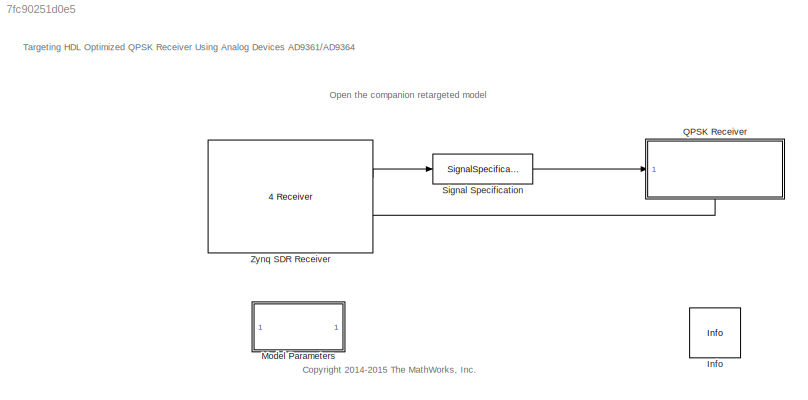
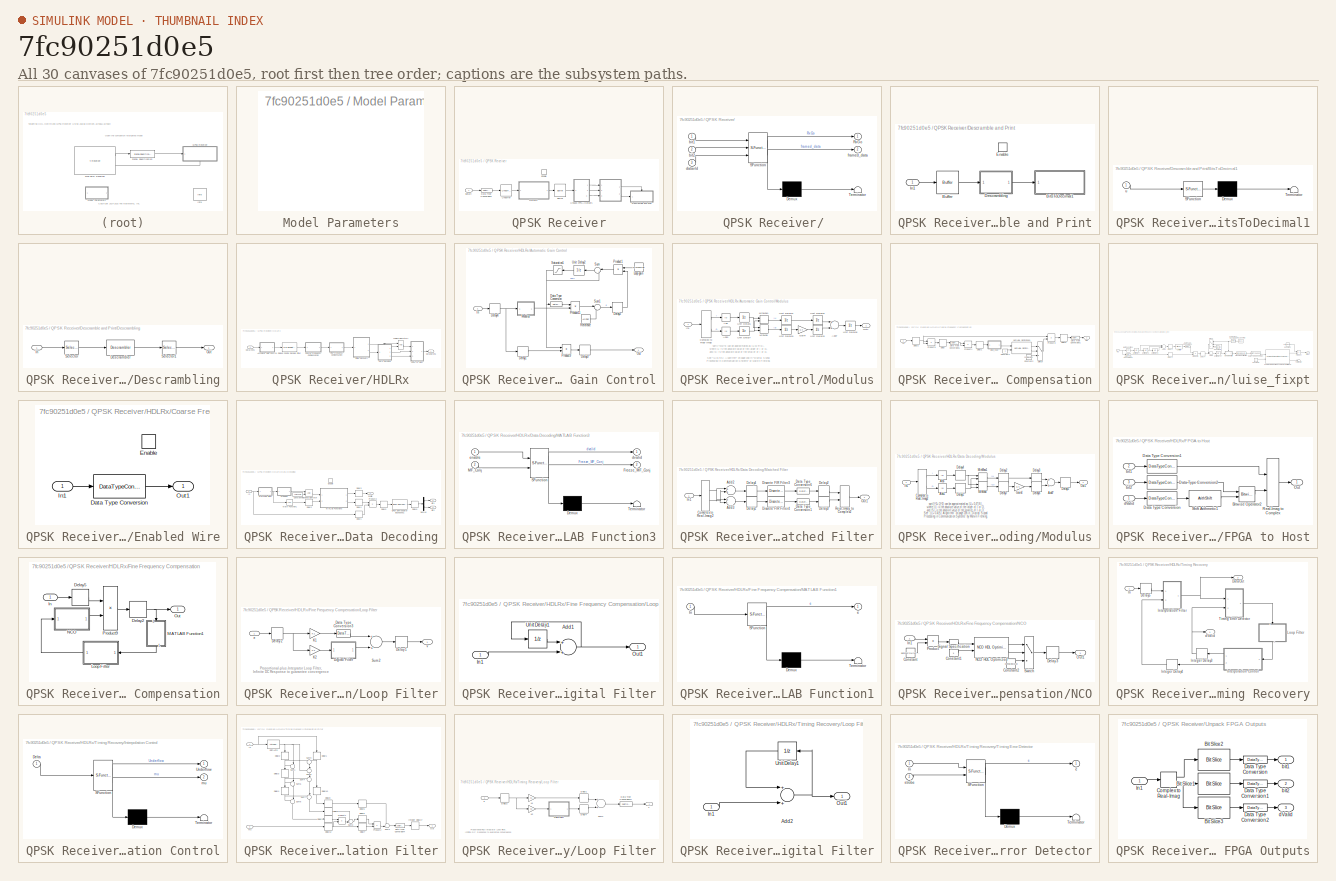
[diagram: thumbnail index - all 30 canvases of the model, root first then tree order]
MODEL slx_7fc90251d0e5
KIND model
CONFIG AbsTol = auto
CONFIG FixedStep = auto
CONFIG InitFcn = sdrzQPSKrxFPGA = zynqRadioQPSKRxFPGAAD9361AD9364SL_init;
CONFIG MaxStep = auto
CONFIG MinStep = auto
CONFIG PreLoadFcn = sdrzQPSKrxFPGA = zynqRadioQPSKRxFPGAAD9361AD9364SL_init;
CONFIG RelTol = 1e-3
CONFIG SampleTimeConstraint = Unconstrained
CONFIG Solver = FixedStepDiscrete
CONFIG SolverMode = SingleTasking
CONFIG SolverName = FixedStepDiscrete
CONFIG StartTime = 0.0
CONFIG StopTime = Inf
BLOCK [Reference] Info  REF=sdrzblksprivate/Info
  Ports = []
  SourceBlock = sdrzblksprivate/Info
  SourceType = Info
BLOCK [SubSystem] Model Parameters
  Ports = []
  RequestExecContextInheritance = off
  Variant = off
BLOCK [SubSystem] QPSK Receiver
  Ports = [1, 0, 1]
  RequestExecContextInheritance = off
  Variant = off
BLOCK [SubSystem] QPSK Receiver/ 
  ErrorFcn = Stateflow.Translate.translate
  PermitHierarchicalResolution = ExplicitOnly
  Ports = [3, 2]
  RequestExecContextInheritance = off
  SFBlockType = MATLAB Function
  TreatAsAtomicUnit = on
  Variant = off
BLOCK [Demux] QPSK Receiver/ / Demux 
  Outputs = 1
  Ports = [1, 1]
BLOCK [S-Function] QPSK Receiver/ / SFunction 
  EnableBusSupport = off
  FunctionName = sf_sfun
  PortCounts = [3 3]
  Ports = [3, 3]
  SFunctionDeploymentMode = off
  Tag = Stateflow S-Function zynqRadioQPSKRxFPGAAD9361AD9364SL 1
BLOCK [Terminator] QPSK Receiver/ / Terminator 
BLOCK [Outport] QPSK Receiver/ /RxGo
  IconDisplay = Port number
BLOCK [Inport] QPSK Receiver/ /bit1
  IconDisplay = Port number
BLOCK [Inport] QPSK Receiver/ /bit2
  IconDisplay = Port number
  Port = 2
BLOCK [Inport] QPSK Receiver/ /datavld
  IconDisplay = Port number
  Port = 3
BLOCK [Outport] QPSK Receiver/ /framed_data
  IconDisplay = Port number
  Port = 2
BLOCK [Buffer] QPSK Receiver/Buffer
  N = 4000
  OutputFrames = off
  TreatMby1Signals = One channel
BLOCK [DataTypeConversion] QPSK Receiver/Data Type Conversion1
  OutDataTypeStr = fixdt(1,16,15)
  RndMeth = Floor
  SaturateOnIntegerOverflow = off
BLOCK [SubSystem] QPSK Receiver/Descramble and Print
  Ports = [1, 0, 1]
  RequestExecContextInheritance = off
  TreatAsAtomicUnit = on
  Variant = off
BLOCK [SubSystem] QPSK Receiver/Descramble and Print/BitsToDecimal1
  ErrorFcn = Stateflow.Translate.translate
  PermitHierarchicalResolution = ExplicitOnly
  Ports = [1]
  RequestExecContextInheritance = off
  SFBlockType = MATLAB Function
  TreatAsAtomicUnit = on
  Variant = off
BLOCK [Demux] QPSK Receiver/Descramble and Print/BitsToDecimal1/ Demux 
  Outputs = 1
  Ports = [1, 1]
BLOCK [S-Function] QPSK Receiver/Descramble and Print/BitsToDecimal1/ SFunction 
  EnableBusSupport = off
  FunctionName = sf_sfun
  PortCounts = [1 1]
  Ports = [1, 1]
  SFunctionDeploymentMode = off
  Tag = Stateflow S-Function zynqRadioQPSKRxFPGAAD9361AD9364SL 2
BLOCK [Terminator] QPSK Receiver/Descramble and Print/BitsToDecimal1/ Terminator 
BLOCK [Inport] QPSK Receiver/Descramble and Print/BitsToDecimal1/u
  IconDisplay = Port number
BLOCK [Buffer] QPSK Receiver/Descramble and Print/Buffer
  N = 200
  OutputFrames = off
  TreatMby1Signals = One channel
BLOCK [SubSystem] QPSK Receiver/Descramble and Print/Descrambling
  Ports = [1, 1]
  RequestExecContextInheritance = off
  Variant = off
BLOCK [Reference] QPSK Receiver/Descramble and Print/Descrambling/Descrambler  REF=commsequence2/Descrambler
  Ports = [1, 1]
  SourceBlock = commsequence2/Descrambler
  SourceType = Descrambler
BLOCK [Inport] QPSK Receiver/Descramble and Print/Descrambling/In
  IconDisplay = Port number
BLOCK [Outport] QPSK Receiver/Descramble and Print/Descrambling/Out
  IconDisplay = Port number
BLOCK [Selector] QPSK Receiver/Descramble and Print/Descrambling/Selector
  IndexOptions = Index vector (dialog)
  Indices = [sdrzQPSKrxFPGA.BarkerLength*log2(sdrzQPSKrxFPGA.M)+1:sdrzQPSKrxFPGA.FrameSize*log2(sdrzQPSKrxFPGA.M)]
  OutputSizes = 1
  Ports = [1, 1]
BLOCK [Selector] QPSK Receiver/Descramble and Print/Descrambling/Selector1
  IndexOptions = Index vector (dialog)
  Indices = [1:sdrzQPSKrxFPGA.MsgLength]
  OutputSizes = 1
  Ports = [1, 1]
BLOCK [EnablePort] QPSK Receiver/Descramble and Print/Enable
  Ports = []
BLOCK [Inport] QPSK Receiver/Descramble and Print/In1
  IconDisplay = Port number
BLOCK [EnablePort] QPSK Receiver/Enable
  Ports = []
BLOCK [SubSystem] QPSK Receiver/HDLRx
  Ports = [1, 1]
  RequestExecContextInheritance = off
  Variant = off
BLOCK [SubSystem] QPSK Receiver/HDLRx/Automatic Gain Control
  Ports = [1, 1]
  RequestExecContextInheritance = off
  Variant = off
BLOCK [DataTypeConversion] QPSK Receiver/HDLRx/Automatic Gain Control/Data Type Conversion
  OutDataTypeStr = fixdt(1,16,4)
  RndMeth = Floor
BLOCK [Delay] QPSK Receiver/HDLRx/Automatic Gain Control/Delay1
  DelayLength = 4
  InitialCondition = 0
  InputPortMap = u0
  Ports = [1, 1]
BLOCK [Delay] QPSK Receiver/HDLRx/Automatic Gain Control/Delay2
  DelayLength = 1
  InitialCondition = 0
  InputPortMap = u0
  Ports = [1, 1]
BLOCK [Delay] QPSK Receiver/HDLRx/Automatic Gain Control/Delay3
  DelayLength = 1
  InitialCondition = 0
  InputPortMap = u0
  Ports = [1, 1]
BLOCK [Delay] QPSK Receiver/HDLRx/Automatic Gain Control/Delay4
  DelayLength = 1
  InitialCondition = 0
  InputPortMap = u0
  Ports = [1, 1]
BLOCK [Inport] QPSK Receiver/HDLRx/Automatic Gain Control/In
  IconDisplay = Port number
BLOCK [Constant] QPSK Receiver/HDLRx/Automatic Gain Control/Loop gain
  OutDataTypeStr = fixdt(1,16,10)
  SampleTime = sdrzQPSKrxFPGA.Ts
  Value = AGCLoopGain
BLOCK [SubSystem] QPSK Receiver/HDLRx/Automatic Gain Control/Modulus
  Ports = [1, 1]
  RequestExecContextInheritance = off
  Variant = off
BLOCK [Abs] QPSK Receiver/HDLRx/Automatic Gain Control/Modulus/Abs
  SaturateOnIntegerOverflow = off
BLOCK [Abs] QPSK Receiver/HDLRx/Automatic Gain Control/Modulus/Abs1
  SaturateOnIntegerOverflow = off
BLOCK [Sum] QPSK Receiver/HDLRx/Automatic Gain Control/Modulus/Add7
  InputSameDT = off
  OutDataTypeStr = Inherit: Inherit via internal rule
  Ports = [2, 1]
  SaturateOnIntegerOverflow = off
BLOCK [ComplexToRealImag] QPSK Receiver/HDLRx/Automatic Gain Control/Modulus/Complex to Real-Imag
  Ports = [1, 2]
BLOCK [Gain] QPSK Receiver/HDLRx/Automatic Gain Control/Modulus/Gain4
  Gain = 0.4
  OutDataTypeStr = fixdt(1,16,15)
  ParamDataTypeStr = Inherit: Inherit via internal rule
  SaturateOnIntegerOverflow = off
BLOCK [Inport] QPSK Receiver/HDLRx/Automatic Gain Control/Modulus/In1
  IconDisplay = Port number
BLOCK [MinMax] QPSK Receiver/HDLRx/Automatic Gain Control/Modulus/MinMax
  InputSameDT = off
  Inputs = 2
  Ports = [2, 1]
  SaturateOnIntegerOverflow = off
BLOCK [MinMax] QPSK Receiver/HDLRx/Automatic Gain Control/Modulus/MinMax1
  Function = max
  InputSameDT = off
  Inputs = 2
  Ports = [2, 1]
  SaturateOnIntegerOverflow = off
BLOCK [Outport] QPSK Receiver/HDLRx/Automatic Gain Control/Modulus/Out1
  IconDisplay = Port number
BLOCK [UnitDelay] QPSK Receiver/HDLRx/Automatic Gain Control/Modulus/Unit Delay10
  InputProcessing = Elements as channels (sample based)
  SampleTime = -1
BLOCK [UnitDelay] QPSK Receiver/HDLRx/Automatic Gain Control/Modulus/Unit Delay11
  InputProcessing = Elements as channels (sample based)
  SampleTime = -1
BLOCK [UnitDelay] QPSK Receiver/HDLRx/Automatic Gain Control/Modulus/Unit Delay12
  InputProcessing = Elements as channels (sample based)
  SampleTime = -1
BLOCK [UnitDelay] QPSK Receiver/HDLRx/Automatic Gain Control/Modulus/Unit Delay13
  InputProcessing = Elements as channels (sample based)
  SampleTime = -1
BLOCK [UnitDelay] QPSK Receiver/HDLRx/Automatic Gain Control/Modulus/Unit Delay16
  InputProcessing = Elements as channels (sample based)
  SampleTime = -1
BLOCK [UnitDelay] QPSK Receiver/HDLRx/Automatic Gain Control/Modulus/Unit Delay6
  InputProcessing = Elements as channels (sample based)
  SampleTime = -1
BLOCK [UnitDelay] QPSK Receiver/HDLRx/Automatic Gain Control/Modulus/Unit Delay7
  InputProcessing = Elements as channels (sample based)
  SampleTime = -1
BLOCK [Outport] QPSK Receiver/HDLRx/Automatic Gain Control/Out
  IconDisplay = Port number
  PortDimensions = 1
BLOCK [Product] QPSK Receiver/HDLRx/Automatic Gain Control/Product1
  InputSameDT = off
  OutDataTypeStr = fixdt(1,16,10)
  Ports = [2, 1]
  SaturateOnIntegerOverflow = off
BLOCK [Product] QPSK Receiver/HDLRx/Automatic Gain Control/Product11
  InputSameDT = off
  OutDataTypeStr = fixdt(1,16,10)
  Ports = [2, 1]
  SaturateOnIntegerOverflow = off
BLOCK [Product] QPSK Receiver/HDLRx/Automatic Gain Control/Product9
  InputSameDT = off
  OutDataTypeStr = fixdt(1,16,14)
  Ports = [2, 1]
BLOCK [Constant] QPSK Receiver/HDLRx/Automatic Gain Control/Reference
  OutDataTypeStr = fixdt(1,16,10)
  SampleTime = sdrzQPSKrxFPGA.Ts
  Value = AGCRef
BLOCK [Saturate] QPSK Receiver/HDLRx/Automatic Gain Control/Saturation1
  InputPortMap = u0
  LowerLimit = 1e-5
  Ports = [1, 1]
  UpperLimit = AGCUpperLimit
BLOCK [Sum] QPSK Receiver/HDLRx/Automatic Gain Control/Sum
  IconShape = round
  InputSameDT = off
  Inputs = |++
  OutDataTypeStr = fixdt(1,23,10)
  Ports = [2, 1]
BLOCK [Sum] QPSK Receiver/HDLRx/Automatic Gain Control/Sum1
  IconShape = round
  InputSameDT = off
  Inputs = |-+
  Ports = [2, 1]
  SaturateOnIntegerOverflow = off
BLOCK [UnitDelay] QPSK Receiver/HDLRx/Automatic Gain Control/Unit Delay2
  InputProcessing = Elements as channels (sample based)
  SampleTime = -1
BLOCK [SubSystem] QPSK Receiver/HDLRx/Coarse Frequency Compensation
  Ports = [1, 1]
  RequestExecContextInheritance = off
  Variant = off
BLOCK [Constant] QPSK Receiver/HDLRx/Coarse Frequency Compensation/Constant1
  OutDataTypeStr = boolean
  SampleTime = sdrzQPSKrxFPGA.Ts*sdrzQPSKrxFPGA.Upsampling/sdrzQPSKrxFPGA.Downsampling
BLOCK [Constant] QPSK Receiver/HDLRx/Coarse Frequency Compensation/Constant2
  OutDataTypeStr = fixdt(1,10,8)
  SampleTime = sdrzQPSKrxFPGA.Ts*sdrzQPSKrxFPGA.Upsampling/sdrzQPSKrxFPGA.Downsampling
  Value = complex(0,0)
BLOCK [DataTypeConversion] QPSK Receiver/HDLRx/Coarse Frequency Compensation/Data Type Conversion1
  OutDataTypeStr = fixdt(1,16,14)
  RndMeth = Floor
  SaturateOnIntegerOverflow = off
BLOCK [DataTypeConversion] QPSK Receiver/HDLRx/Coarse Frequency Compensation/Data Type Conversion5
  OutDataTypeStr = fixdt(1,16,13)
  RndMeth = Floor
BLOCK [Delay] QPSK Receiver/HDLRx/Coarse Frequency Compensation/Delay
  DelayLength = 4
  InitialCondition = 0
  InputPortMap = u0
  Ports = [1, 1]
BLOCK [Delay] QPSK Receiver/HDLRx/Coarse Frequency Compensation/Delay1
  DelayLength = 4
  InitialCondition = 0
  InputPortMap = u0
  Ports = [1, 1]
BLOCK [Delay] QPSK Receiver/HDLRx/Coarse Frequency Compensation/Delay2
  DelayLength = 1
  InitialCondition = 0
  InputPortMap = u0
  Ports = [1, 1]
BLOCK [Delay] QPSK Receiver/HDLRx/Coarse Frequency Compensation/Delay5
  DelayLength = 4
  InitialCondition = 0
  InputPortMap = u0
  Ports = [1, 1]
BLOCK [Inport] QPSK Receiver/HDLRx/Coarse Frequency Compensation/In
  IconDisplay = Port number
  PortDimensions = 1
BLOCK [Reference] QPSK Receiver/HDLRx/Coarse Frequency Compensation/NCO HDL Optimized1  REF=dspsigops/NCO
HDL Optimized
  Ports = [2, 2]
  SourceBlock = dspsigops/NCO\nHDL Optimized
  SourceType = NCO HDL Optimized
BLOCK [Outport] QPSK Receiver/HDLRx/Coarse Frequency Compensation/Out
  IconDisplay = Port number
BLOCK [Product] QPSK Receiver/HDLRx/Coarse Frequency Compensation/Product1
  InputSameDT = off
  OutDataTypeStr = Inherit: Inherit via internal rule
  Ports = [2, 1]
BLOCK [Product] QPSK Receiver/HDLRx/Coarse Frequency Compensation/Product3
  InputSameDT = off
  OutDataTypeStr = Inherit: Inherit via internal rule
  Ports = [2, 1]
BLOCK [Product] QPSK Receiver/HDLRx/Coarse Frequency Compensation/Product9
  InputSameDT = off
  OutDataTypeStr = Inherit: Inherit via internal rule
  Ports = [2, 1]
BLOCK [Switch] QPSK Receiver/HDLRx/Coarse Frequency Compensation/Switch
  Criteria = u2 ~= 0
  InputSameDT = off
  SaturateOnIntegerOverflow = off
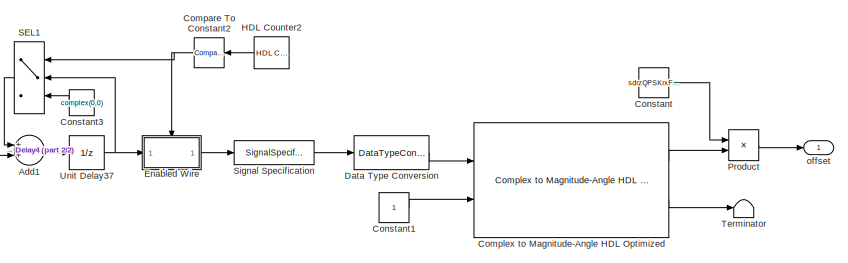
[diagram: QPSK Receiver/HDLRx/Coarse Frequency Compensation/luise_fixpt - part 1/2, right side, full height]
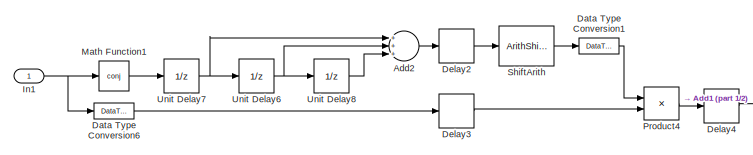
[diagram: QPSK Receiver/HDLRx/Coarse Frequency Compensation/luise_fixpt - part 2/2, middle left region]
BLOCK [SubSystem] QPSK Receiver/HDLRx/Coarse Frequency Compensation/luise_fixpt
  Ports = [1, 1]
  RequestExecContextInheritance = off
  Variant = off
BLOCK [Sum] QPSK Receiver/HDLRx/Coarse Frequency Compensation/luise_fixpt/Add1
  InputSameDT = off
  OutDataTypeStr = fixdt(1,33,20)
  Ports = [2, 1]
  SaturateOnIntegerOverflow = off
BLOCK [Sum] QPSK Receiver/HDLRx/Coarse Frequency Compensation/luise_fixpt/Add2
  InputSameDT = off
  Inputs = +++
  OutDataTypeStr = fixdt(1,33,20)
  Ports = [3, 1]
  SaturateOnIntegerOverflow = off
BLOCK [Reference] QPSK Receiver/HDLRx/Coarse Frequency Compensation/luise_fixpt/Compare To Constant2  REF=simulink/Logic and Bit
Operations/Compare
To Constant
  Ports = [1, 1]
  SourceBlock = simulink/Logic and Bit\nOperations/Compare\nTo Constant
  SourceType = Compare To Constant
BLOCK [Reference] QPSK Receiver/HDLRx/Coarse Frequency Compensation/luise_fixpt/Complex to Magnitude-Angle HDL Optimized  REF=dspmathops/Complex to Magnitude-Angle
HDL Optimized
  Ports = [2, 2]
  SourceBlock = dspmathops/Complex to Magnitude-Angle\nHDL Optimized
  SourceType = Complex to Magnitude-Angle HDL Optimized
BLOCK [Constant] QPSK Receiver/HDLRx/Coarse Frequency Compensation/luise_fixpt/Constant
  OutDataTypeStr = int16
  SampleTime = sdrzQPSKrxFPGA.Ts*sdrzQPSKrxFPGA.Upsampling/sdrzQPSKrxFPGA.Downsampling
  Value = sdrzQPSKrxFPGA.CFC_Const
BLOCK [Constant] QPSK Receiver/HDLRx/Coarse Frequency Compensation/luise_fixpt/Constant1
  OutDataTypeStr = boolean
  SampleTime = sdrzQPSKrxFPGA.Ts*sdrzQPSKrxFPGA.Upsampling/sdrzQPSKrxFPGA.Downsampling
BLOCK [Constant] QPSK Receiver/HDLRx/Coarse Frequency Compensation/luise_fixpt/Constant3
  OutDataTypeStr = fixdt(1,16,14)
  SampleTime = sdrzQPSKrxFPGA.Ts*sdrzQPSKrxFPGA.Upsampling/sdrzQPSKrxFPGA.Downsampling
  Value = complex(0,0)
BLOCK [DataTypeConversion] QPSK Receiver/HDLRx/Coarse Frequency Compensation/luise_fixpt/Data Type Conversion
  OutDataTypeStr = fixdt(1,sdrzQPSKrxFPGA.rad_WL,sdrzQPSKrxFPGA.rad_FL)
  RndMeth = Floor
  SaturateOnIntegerOverflow = off
BLOCK [DataTypeConversion] QPSK Receiver/HDLRx/Coarse Frequency Compensation/luise_fixpt/Data Type Conversion1
  OutDataTypeStr = fixdt(1,11,10)
  RndMeth = Floor
  SaturateOnIntegerOverflow = off
BLOCK [DataTypeConversion] QPSK Receiver/HDLRx/Coarse Frequency Compensation/luise_fixpt/Data Type Conversion6
  OutDataTypeStr = fixdt(1,14,9)
  RndMeth = Floor
BLOCK [Delay] QPSK Receiver/HDLRx/Coarse Frequency Compensation/luise_fixpt/Delay2
  DelayLength = 1
  InitialCondition = 0
  InputPortMap = u0
  Ports = [1, 1]
BLOCK [Delay] QPSK Receiver/HDLRx/Coarse Frequency Compensation/luise_fixpt/Delay3
  DelayLength = 1
  InitialCondition = 0
  InputPortMap = u0
  Ports = [1, 1]
BLOCK [Delay] QPSK Receiver/HDLRx/Coarse Frequency Compensation/luise_fixpt/Delay4
  DelayLength = 4
  InitialCondition = 0
  InputPortMap = u0
  Ports = [1, 1]
BLOCK [SubSystem] QPSK Receiver/HDLRx/Coarse Frequency Compensation/luise_fixpt/Enabled Wire
  Ports = [1, 1, 1]
  RequestExecContextInheritance = off
  TreatAsAtomicUnit = on
  Variant = off
BLOCK [DataTypeConversion] QPSK Receiver/HDLRx/Coarse Frequency Compensation/luise_fixpt/Enabled Wire/Data Type Conversion
  OutDataTypeStr = fixdt(1,sdrzQPSKrxFPGA.rad_WL,sdrzQPSKrxFPGA.rad_FL)
  RndMeth = Floor
  SaturateOnIntegerOverflow = off
BLOCK [EnablePort] QPSK Receiver/HDLRx/Coarse Frequency Compensation/luise_fixpt/Enabled Wire/Enable
  Ports = []
BLOCK [Inport] QPSK Receiver/HDLRx/Coarse Frequency Compensation/luise_fixpt/Enabled Wire/In1
  IconDisplay = Port number
BLOCK [Outport] QPSK Receiver/HDLRx/Coarse Frequency Compensation/luise_fixpt/Enabled Wire/Out1
  IconDisplay = Port number
  InitialOutput = 0
BLOCK [Reference] QPSK Receiver/HDLRx/Coarse Frequency Compensation/luise_fixpt/HDL Counter2  REF=hdlsllib/HDL Operations/HDL Counter
  Ports = [0, 1]
  SourceBlock = hdlsllib/HDL Operations/HDL Counter
  SourceType = HDL Counter
BLOCK [Inport] QPSK Receiver/HDLRx/Coarse Frequency Compensation/luise_fixpt/In1
  IconDisplay = Port number
BLOCK [Math] QPSK Receiver/HDLRx/Coarse Frequency Compensation/luise_fixpt/Math Function1
  Operator = conj
  OutputSignalType = complex
  Ports = [1, 1]
BLOCK [Product] QPSK Receiver/HDLRx/Coarse Frequency Compensation/luise_fixpt/Product
  InputSameDT = off
  OutDataTypeStr = int16
  Ports = [2, 1]
  RndMeth = Floor
  SaturateOnIntegerOverflow = off
BLOCK [Product] QPSK Receiver/HDLRx/Coarse Frequency Compensation/luise_fixpt/Product4
  InputSameDT = off
  OutDataTypeStr = Inherit: Inherit via internal rule
  Ports = [2, 1]
BLOCK [MultiPortSwitch] QPSK Receiver/HDLRx/Coarse Frequency Compensation/luise_fixpt/SEL1
  DataPortOrder = Zero-based contiguous
  DiagnosticForDefault = None
  InputSameDT = off
  Inputs = 2
  OutDataTypeStr = fixdt(1,33,20)
  Ports = [3, 1]
  SaturateOnIntegerOverflow = off
BLOCK [ArithShift] QPSK Receiver/HDLRx/Coarse Frequency Compensation/luise_fixpt/ShiftArith
  BitShiftDirection = Right
  BitShiftNumber = 9
  InputPortMap = u0
  Ports = [1, 1]
BLOCK [SignalSpecification] QPSK Receiver/HDLRx/Coarse Frequency Compensation/luise_fixpt/Signal Specification
  Dimensions = 1
BLOCK [Terminator] QPSK Receiver/HDLRx/Coarse Frequency Compensation/luise_fixpt/Terminator
BLOCK [UnitDelay] QPSK Receiver/HDLRx/Coarse Frequency Compensation/luise_fixpt/Unit Delay37
  InitialCondition = 0+0j
  InputProcessing = Elements as channels (sample based)
  SampleTime = -1
BLOCK [UnitDelay] QPSK Receiver/HDLRx/Coarse Frequency Compensation/luise_fixpt/Unit Delay6
  InputProcessing = Elements as channels (sample based)
  SampleTime = -1
BLOCK [UnitDelay] QPSK Receiver/HDLRx/Coarse Frequency Compensation/luise_fixpt/Unit Delay7
  InputProcessing = Elements as channels (sample based)
  SampleTime = -1
BLOCK [UnitDelay] QPSK Receiver/HDLRx/Coarse Frequency Compensation/luise_fixpt/Unit Delay8
  InputProcessing = Elements as channels (sample based)
  SampleTime = -1
BLOCK [Outport] QPSK Receiver/HDLRx/Coarse Frequency Compensation/luise_fixpt/offset
  IconDisplay = Port number
  PortDimensions = 1
BLOCK [SubSystem] QPSK Receiver/HDLRx/Data Decoding
  Ports = [1, 3, 1]
  RequestExecContextInheritance = off
  TreatAsAtomicUnit = on
  Variant = off
BLOCK [Outport] QPSK Receiver/HDLRx/Data Decoding/Bit1
  IconDisplay = Port number
  InitialOutput = 0
  Port = 2
BLOCK [Outport] QPSK Receiver/HDLRx/Data Decoding/Bit2
  IconDisplay = Port number
  InitialOutput = 0
  Port = 3
BLOCK [Constant] QPSK Receiver/HDLRx/Data Decoding/Constant
  OutDataTypeStr = Inherit: Inherit via back propagation
  SampleTime = sdrzQPSKrxFPGA.Ts*sdrzQPSKrxFPGA.Upsampling/sdrzQPSKrxFPGA.Downsampling
  Value = Threshold
BLOCK [Delay] QPSK Receiver/HDLRx/Data Decoding/Delay1
  DelayLength = 20
  InitialCondition = 0
  InputPortMap = u0
  Ports = [1, 1]
BLOCK [Delay] QPSK Receiver/HDLRx/Data Decoding/Delay2
  DelayLength = 4
  InitialCondition = 0
  InputPortMap = u0
  Ports = [1, 1]
BLOCK [Delay] QPSK Receiver/HDLRx/Data Decoding/Delay3
  DelayLength = 3
  InitialCondition = 0
  InputPortMap = u0
  Ports = [1, 1]
BLOCK [Delay] QPSK Receiver/HDLRx/Data Decoding/Delay4
  DelayLength = 1
  InitialCondition = 0
  InputPortMap = u0
  Ports = [1, 1]
BLOCK [Delay] QPSK Receiver/HDLRx/Data Decoding/Delay5
  DelayLength = 1
  InitialCondition = 0
  InputPortMap = u0
  Ports = [1, 1]
BLOCK [Delay] QPSK Receiver/HDLRx/Data Decoding/Delay6
  DelayLength = 1
  InitialCondition = 0
  InputPortMap = u0
  Ports = [1, 1]
BLOCK [Demux] QPSK Receiver/HDLRx/Data Decoding/Demux
  DisplayOption = bar
  Outputs = 2
  Ports = [1, 2]
BLOCK [EnablePort] QPSK Receiver/HDLRx/Data Decoding/Enable
  Ports = []
BLOCK [Inport] QPSK Receiver/HDLRx/Data Decoding/In
  IconDisplay = Port number
BLOCK [SubSystem] QPSK Receiver/HDLRx/Data Decoding/MATLAB Function3
  ErrorFcn = Stateflow.Translate.translate
  PermitHierarchicalResolution = ExplicitOnly
  Ports = [2, 2]
  RequestExecContextInheritance = off
  SFBlockType = MATLAB Function
  TreatAsAtomicUnit = on
  Variant = off
BLOCK [Demux] QPSK Receiver/HDLRx/Data Decoding/MATLAB Function3/ Demux 
  Outputs = 1
  Ports = [1, 1]
BLOCK [S-Function] QPSK Receiver/HDLRx/Data Decoding/MATLAB Function3/ SFunction 
  EnableBusSupport = off
  FunctionName = sf_sfun
  PortCounts = [2 3]
  Ports = [2, 3]
  SFunctionDeploymentMode = off
  Tag = Stateflow S-Function zynqRadioQPSKRxFPGAAD9361AD9364SL 3
BLOCK [Terminator] QPSK Receiver/HDLRx/Data Decoding/MATLAB Function3/ Terminator 
BLOCK [Outport] QPSK Receiver/HDLRx/Data Decoding/MATLAB Function3/Freeze_MF_Conj
  IconDisplay = Port number
  Port = 2
BLOCK [Inport] QPSK Receiver/HDLRx/Data Decoding/MATLAB Function3/MF_Conj
  IconDisplay = Port number
  Port = 2
BLOCK [Outport] QPSK Receiver/HDLRx/Data Decoding/MATLAB Function3/dvalid
  IconDisplay = Port number
BLOCK [Inport] QPSK Receiver/HDLRx/Data Decoding/MATLAB Function3/enable
  IconDisplay = Port number
BLOCK [SubSystem] QPSK Receiver/HDLRx/Data Decoding/Matched Filter
  Ports = [1, 1]
  RequestExecContextInheritance = off
  Variant = off
BLOCK [Sum] QPSK Receiver/HDLRx/Data Decoding/Matched Filter/Add2
  InputSameDT = off
  OutDataTypeStr = Inherit: Inherit via internal rule
  Ports = [2, 1]
  SaturateOnIntegerOverflow = off
BLOCK [Sum] QPSK Receiver/HDLRx/Data Decoding/Matched Filter/Add3
  InputSameDT = off
  Inputs = +-
  OutDataTypeStr = Inherit: Inherit via internal rule
  Ports = [2, 1]
  SaturateOnIntegerOverflow = off
BLOCK [ComplexToRealImag] QPSK Receiver/HDLRx/Data Decoding/Matched Filter/Complex to Real-Imag2
  Ports = [1, 2]
BLOCK [DataTypeConversion] QPSK Receiver/HDLRx/Data Decoding/Matched Filter/Data Type Conversion1
  OutDataTypeStr = fixdt(1,16,10)
  RndMeth = Floor
  SaturateOnIntegerOverflow = off
BLOCK [DataTypeConversion] QPSK Receiver/HDLRx/Data Decoding/Matched Filter/Data Type Conversion6
  OutDataTypeStr = fixdt(1,16,10)
  RndMeth = Floor
  SaturateOnIntegerOverflow = off
BLOCK [Delay] QPSK Receiver/HDLRx/Data Decoding/Matched Filter/Delay1
  DelayLength = 1
  InitialCondition = 0
  InputPortMap = u0
  Ports = [1, 1]
BLOCK [Delay] QPSK Receiver/HDLRx/Data Decoding/Matched Filter/Delay2
  DelayLength = 1
  InitialCondition = 0
  InputPortMap = u0
  Ports = [1, 1]
BLOCK [Delay] QPSK Receiver/HDLRx/Data Decoding/Matched Filter/Delay3
  DelayLength = 1
  InitialCondition = 0
  InputPortMap = u0
  Ports = [1, 1]
BLOCK [Delay] QPSK Receiver/HDLRx/Data Decoding/Matched Filter/Delay4
  DelayLength = 1
  InitialCondition = 0
  InputPortMap = u0
  Ports = [1, 1]
BLOCK [DiscreteFir] QPSK Receiver/HDLRx/Data Decoding/Matched Filter/Discrete FIR Filter3
  Coefficients = [-1 1 -1 1 -1 -1 1 1 -1 -1 -1 -1 -1]
  FilterStructure = Direct form transposed
  InputPortMap = u0
  OutputPortMap = o0
  Ports = [1, 1]
BLOCK [DiscreteFir] QPSK Receiver/HDLRx/Data Decoding/Matched Filter/Discrete FIR Filter4
  Coefficients = -1*[-1 1 -1 1 -1 -1 1 1 -1 -1 -1 -1 -1]
  FilterStructure = Direct form transposed
  InputPortMap = u0
  OutputPortMap = o0
  Ports = [1, 1]
BLOCK [Inport] QPSK Receiver/HDLRx/Data Decoding/Matched Filter/In1
  IconDisplay = Port number
BLOCK [Outport] QPSK Receiver/HDLRx/Data Decoding/Matched Filter/Out1
  IconDisplay = Port number
BLOCK [RealImagToComplex] QPSK Receiver/HDLRx/Data Decoding/Matched Filter/Real-Imag to Complex2
  Ports = [2, 1]
BLOCK [Math] QPSK Receiver/HDLRx/Data Decoding/Math Function1
  Operator = conj
  OutputSignalType = complex
  Ports = [1, 1]
BLOCK [SubSystem] QPSK Receiver/HDLRx/Data Decoding/Modulus
  Ports = [1, 1]
  RequestExecContextInheritance = off
  Variant = off
BLOCK [Abs] QPSK Receiver/HDLRx/Data Decoding/Modulus/Abs
  SaturateOnIntegerOverflow = off
BLOCK [Abs] QPSK Receiver/HDLRx/Data Decoding/Modulus/Abs1
  SaturateOnIntegerOverflow = off
BLOCK [Sum] QPSK Receiver/HDLRx/Data Decoding/Modulus/Add7
  InputSameDT = off
  OutDataTypeStr = Inherit: Inherit via internal rule
  Ports = [2, 1]
  SaturateOnIntegerOverflow = off
BLOCK [ComplexToRealImag] QPSK Receiver/HDLRx/Data Decoding/Modulus/Complex to Real-Imag2
  Ports = [1, 2]
BLOCK [Delay] QPSK Receiver/HDLRx/Data Decoding/Modulus/Delay1
  DelayLength = 1
  InitialCondition = 0
  InputPortMap = u0
  Ports = [1, 1]
BLOCK [Delay] QPSK Receiver/HDLRx/Data Decoding/Modulus/Delay2
  DelayLength = 1
  InitialCondition = 0
  InputPortMap = u0
  Ports = [1, 1]
BLOCK [Delay] QPSK Receiver/HDLRx/Data Decoding/Modulus/Delay3
  DelayLength = 1
  InitialCondition = 0
  InputPortMap = u0
  Ports = [1, 1]
BLOCK [Delay] QPSK Receiver/HDLRx/Data Decoding/Modulus/Delay4
  DelayLength = 1
  InitialCondition = 0
  InputPortMap = u0
  Ports = [1, 1]
BLOCK [Delay] QPSK Receiver/HDLRx/Data Decoding/Modulus/Delay5
  DelayLength = 1
  InitialCondition = 0
  InputPortMap = u0
  Ports = [1, 1]
BLOCK [Delay] QPSK Receiver/HDLRx/Data Decoding/Modulus/Delay6
  DelayLength = 1
  InitialCondition = 0
  InputPortMap = u0
  Ports = [1, 1]
BLOCK [Delay] QPSK Receiver/HDLRx/Data Decoding/Modulus/Delay7
  DelayLength = 1
  InitialCondition = 0
  InputPortMap = u0
  Ports = [1, 1]
BLOCK [Gain] QPSK Receiver/HDLRx/Data Decoding/Modulus/Gain4
  Gain = 0.4
  OutDataTypeStr = fixdt(1,16,15)
  ParamDataTypeStr = Inherit: Inherit via internal rule
  SaturateOnIntegerOverflow = off
BLOCK [Inport] QPSK Receiver/HDLRx/Data Decoding/Modulus/In1
  IconDisplay = Port number
BLOCK [MinMax] QPSK Receiver/HDLRx/Data Decoding/Modulus/MinMax
  InputSameDT = off
  Inputs = 2
  Ports = [2, 1]
  SaturateOnIntegerOverflow = off
BLOCK [MinMax] QPSK Receiver/HDLRx/Data Decoding/Modulus/MinMax1
  Function = max
  InputSameDT = off
  Inputs = 2
  Ports = [2, 1]
  SaturateOnIntegerOverflow = off
BLOCK [Outport] QPSK Receiver/HDLRx/Data Decoding/Modulus/Out1
  IconDisplay = Port number
BLOCK [Product] QPSK Receiver/HDLRx/Data Decoding/Product2
  InputSameDT = off
  OutDataTypeStr = Inherit: Inherit via internal rule
  Ports = [2, 1]
BLOCK [Reference] QPSK Receiver/HDLRx/Data Decoding/QPSK Demodulator Baseband1  REF=commdigbbndpm3/QPSK
Demodulator
Baseband
  Ports = [1, 1]
  SourceBlock = commdigbbndpm3/QPSK\nDemodulator\nBaseband
  SourceType = QPSK Demodulator Baseband
BLOCK [RelationalOperator] QPSK Receiver/HDLRx/Data Decoding/Relational Operator
  OutDataTypeStr = boolean
  Ports = [2, 1]
BLOCK [Outport] QPSK Receiver/HDLRx/Data Decoding/dValid
  IconDisplay = Port number
  InitialOutput = 0
BLOCK [SubSystem] QPSK Receiver/HDLRx/FPGA to Host
  Ports = [3, 1]
  RequestExecContextInheritance = off
  Variant = off
BLOCK [Reference] QPSK Receiver/HDLRx/FPGA to Host/Bitwise Operator2  REF=simulink/Logic and Bit
Operations/Bitwise
Operator
  Ports = [2, 1]
  SourceBlock = simulink/Logic and Bit\nOperations/Bitwise\nOperator
  SourceType = Bitwise Operator
BLOCK [DataTypeConversion] QPSK Receiver/HDLRx/FPGA to Host/Data Type Conversion
  OutDataTypeStr = int16
  RndMeth = Floor
  SaturateOnIntegerOverflow = off
BLOCK [DataTypeConversion] QPSK Receiver/HDLRx/FPGA to Host/Data Type Conversion1
  OutDataTypeStr = int16
  RndMeth = Floor
  SaturateOnIntegerOverflow = off
BLOCK [DataTypeConversion] QPSK Receiver/HDLRx/FPGA to Host/Data Type Conversion2
  OutDataTypeStr = int16
  RndMeth = Floor
  SaturateOnIntegerOverflow = off
BLOCK [Outport] QPSK Receiver/HDLRx/FPGA to Host/Out
  IconDisplay = Port number
BLOCK [RealImagToComplex] QPSK Receiver/HDLRx/FPGA to Host/Real-Imag to Complex
  Ports = [2, 1]
BLOCK [ArithShift] QPSK Receiver/HDLRx/FPGA to Host/Shift Arithmetic1
  BitShiftDirection = Left
  BitShiftNumber = 15
  InputPortMap = u0
  Ports = [1, 1]
BLOCK [Inport] QPSK Receiver/HDLRx/FPGA to Host/bit1
  IconDisplay = Port number
  Port = 2
BLOCK [Inport] QPSK Receiver/HDLRx/FPGA to Host/bit2
  IconDisplay = Port number
  Port = 3
BLOCK [Inport] QPSK Receiver/HDLRx/FPGA to Host/dValid
  IconDisplay = Port number
BLOCK [SubSystem] QPSK Receiver/HDLRx/Fine Frequency Compensation
  Ports = [1, 1]
  RequestExecContextInheritance = off
  Variant = off
BLOCK [Delay] QPSK Receiver/HDLRx/Fine Frequency Compensation/Delay2
  DelayLength = 1
  InitialCondition = 0
  InputPortMap = u0
  Ports = [1, 1]
BLOCK [Delay] QPSK Receiver/HDLRx/Fine Frequency Compensation/Delay5
  DelayLength = 9
  InitialCondition = 0
  InputPortMap = u0
  Ports = [1, 1]
BLOCK [Inport] QPSK Receiver/HDLRx/Fine Frequency Compensation/In
  IconDisplay = Port number
  PortDimensions = 1
BLOCK [SubSystem] QPSK Receiver/HDLRx/Fine Frequency Compensation/Loop Filter
  Ports = [1, 1]
  RequestExecContextInheritance = off
  Variant = off
BLOCK [DataTypeConversion] QPSK Receiver/HDLRx/Fine Frequency Compensation/Loop Filter/Data Type Conversion3
  OutDataTypeStr = fixdt(1,32,29)
  RndMeth = Floor
  SaturateOnIntegerOverflow = off
BLOCK [Delay] QPSK Receiver/HDLRx/Fine Frequency Compensation/Loop Filter/Delay1
  DelayLength = 1
  InitialCondition = 0
  InputPortMap = u0
  Ports = [1, 1]
BLOCK [Delay] QPSK Receiver/HDLRx/Fine Frequency Compensation/Loop Filter/Delay2
  DelayLength = 1
  InitialCondition = 0
  InputPortMap = u0
  Ports = [1, 1]
BLOCK [SubSystem] QPSK Receiver/HDLRx/Fine Frequency Compensation/Loop Filter/Digital Filter
  Ports = [1, 1]
  RequestExecContextInheritance = off
  Variant = off
BLOCK [Sum] QPSK Receiver/HDLRx/Fine Frequency Compensation/Loop Filter/Digital Filter/Add1
  InputSameDT = off
  OutDataTypeStr = fixdt(1,32,29)
  Ports = [2, 1]
  SaturateOnIntegerOverflow = off
BLOCK [Inport] QPSK Receiver/HDLRx/Fine Frequency Compensation/Loop Filter/Digital Filter/In1
  IconDisplay = Port number
BLOCK [Outport] QPSK Receiver/HDLRx/Fine Frequency Compensation/Loop Filter/Digital Filter/Out1
  IconDisplay = Port number
BLOCK [UnitDelay] QPSK Receiver/HDLRx/Fine Frequency Compensation/Loop Filter/Digital Filter/Unit Delay1
  InputProcessing = Elements as channels (sample based)
  SampleTime = -1
BLOCK [Gain] QPSK Receiver/HDLRx/Fine Frequency Compensation/Loop Filter/K1
  Gain = K1
  OutDataTypeStr = Inherit: Inherit via internal rule
  ParamDataTypeStr = Inherit: Inherit via internal rule
  SaturateOnIntegerOverflow = off
BLOCK [Gain] QPSK Receiver/HDLRx/Fine Frequency Compensation/Loop Filter/K2
  Gain = K2
  OutDataTypeStr = Inherit: Inherit via internal rule
  ParamDataTypeStr = Inherit: Inherit via internal rule
  SaturateOnIntegerOverflow = off
BLOCK [Sum] QPSK Receiver/HDLRx/Fine Frequency Compensation/Loop Filter/Sum2
  OutDataTypeStr = fixdt(1,22,19)
  Ports = [2, 1]
BLOCK [Inport] QPSK Receiver/HDLRx/Fine Frequency Compensation/Loop Filter/e
  IconDisplay = Port number
BLOCK [Outport] QPSK Receiver/HDLRx/Fine Frequency Compensation/Loop Filter/v
  IconDisplay = Port number
BLOCK [SubSystem] QPSK Receiver/HDLRx/Fine Frequency Compensation/MATLAB Function1
  ErrorFcn = Stateflow.Translate.translate
  PermitHierarchicalResolution = ExplicitOnly
  Ports = [1, 1]
  RequestExecContextInheritance = off
  SFBlockType = MATLAB Function
  TreatAsAtomicUnit = on
  Variant = off
BLOCK [Demux] QPSK Receiver/HDLRx/Fine Frequency Compensation/MATLAB Function1/ Demux 
  Outputs = 1
  Ports = [1, 1]
BLOCK [S-Function] QPSK Receiver/HDLRx/Fine Frequency Compensation/MATLAB Function1/ SFunction 
  EnableBusSupport = off
  FunctionName = sf_sfun
  PortCounts = [1 2]
  Ports = [1, 2]
  SFunctionDeploymentMode = off
  Tag = Stateflow S-Function zynqRadioQPSKRxFPGAAD9361AD9364SL 4
BLOCK [Terminator] QPSK Receiver/HDLRx/Fine Frequency Compensation/MATLAB Function1/ Terminator 
BLOCK [Inport] QPSK Receiver/HDLRx/Fine Frequency Compensation/MATLAB Function1/In
  IconDisplay = Port number
BLOCK [Outport] QPSK Receiver/HDLRx/Fine Frequency Compensation/MATLAB Function1/e
  IconDisplay = Port number
BLOCK [SubSystem] QPSK Receiver/HDLRx/Fine Frequency Compensation/NCO
  Ports = [1, 1]
  RequestExecContextInheritance = off
  Variant = off
BLOCK [Constant] QPSK Receiver/HDLRx/Fine Frequency Compensation/NCO/Constant
  OutDataTypeStr = int16
  SampleTime = sdrzQPSKrxFPGA.Ts*sdrzQPSKrxFPGA.Upsampling/sdrzQPSKrxFPGA.Downsampling
  Value = sdrzQPSKrxFPGA.FFC_Const
BLOCK [Constant] QPSK Receiver/HDLRx/Fine Frequency Compensation/NCO/Constant1
  OutDataTypeStr = boolean
  SampleTime = sdrzQPSKrxFPGA.Ts*sdrzQPSKrxFPGA.Upsampling/sdrzQPSKrxFPGA.Downsampling
BLOCK [Constant] QPSK Receiver/HDLRx/Fine Frequency Compensation/NCO/Constant2
  OutDataTypeStr = fixdt(1,10,8)
  SampleTime = sdrzQPSKrxFPGA.Ts*sdrzQPSKrxFPGA.Upsampling/sdrzQPSKrxFPGA.Downsampling
  Value = complex(0,0)
BLOCK [Delay] QPSK Receiver/HDLRx/Fine Frequency Compensation/NCO/Delay3
  DelayLength = 1
  InitialCondition = 0
  InputPortMap = u0
  Ports = [1, 1]
BLOCK [Inport] QPSK Receiver/HDLRx/Fine Frequency Compensation/NCO/In1
  IconDisplay = Port number
BLOCK [Reference] QPSK Receiver/HDLRx/Fine Frequency Compensation/NCO/NCO HDL Optimized  REF=dspsigops/NCO
HDL Optimized
  Ports = [2, 2]
  SourceBlock = dspsigops/NCO\nHDL Optimized
  SourceType = NCO HDL Optimized
BLOCK [Outport] QPSK Receiver/HDLRx/Fine Frequency Compensation/NCO/Out1
  IconDisplay = Port number
BLOCK [Product] QPSK Receiver/HDLRx/Fine Frequency Compensation/NCO/Product
  InputSameDT = off
  OutDataTypeStr = int16
  Ports = [2, 1]
  RndMeth = Floor
  SaturateOnIntegerOverflow = off
BLOCK [SignalSpecification] QPSK Receiver/HDLRx/Fine Frequency Compensation/NCO/Signal Specification
  Dimensions = 1
BLOCK [Switch] QPSK Receiver/HDLRx/Fine Frequency Compensation/NCO/Switch
  Criteria = u2 ~= 0
  InputSameDT = off
  SaturateOnIntegerOverflow = off
BLOCK [Outport] QPSK Receiver/HDLRx/Fine Frequency Compensation/Out
  IconDisplay = Port number
BLOCK [Product] QPSK Receiver/HDLRx/Fine Frequency Compensation/Product9
  InputSameDT = off
  OutDataTypeStr = fixdt(1,16,14)
  Ports = [2, 1]
BLOCK [Logic] QPSK Receiver/HDLRx/Logical Operator1
  AllPortsSameDT = off
  OutDataTypeStr = boolean
  Ports = [2, 1]
BLOCK [Reference] QPSK Receiver/HDLRx/Raised Cosine Receive Filter  REF=dspmlti4/FIR
Decimation
  Ports = [1, 1]
  SourceBlock = dspmlti4/FIR\nDecimation
  SourceType = FIR Decimation
  UserDataPersistent = on
BLOCK [SubSystem] QPSK Receiver/HDLRx/Timing Recovery
  Ports = [1, 2]
  RequestExecContextInheritance = off
  Variant = off
BLOCK [Outport] QPSK Receiver/HDLRx/Timing Recovery/DataOut
  IconDisplay = Port number
  Port = 2
BLOCK [Delay] QPSK Receiver/HDLRx/Timing Recovery/Delay5
  DelayLength = 6
  InputPortMap = u0
  Ports = [1, 1]
BLOCK [Inport] QPSK Receiver/HDLRx/Timing Recovery/In
  IconDisplay = Port number
BLOCK [Delay] QPSK Receiver/HDLRx/Timing Recovery/Integer Delay3
  DelayLength = 1
  InputPortMap = u0
  InputProcessing = Inherited
  Ports = [1, 1]
  UserDataPersistent = on
BLOCK [Delay] QPSK Receiver/HDLRx/Timing Recovery/Integer Delay4
  DelayLength = 1
  InputPortMap = u0
  InputProcessing = Inherited
  Ports = [1, 1]
  UserDataPersistent = on
BLOCK [SubSystem] QPSK Receiver/HDLRx/Timing Recovery/Interpolation Control
  ErrorFcn = Stateflow.Translate.translate
  PermitHierarchicalResolution = ExplicitOnly
  Ports = [1, 2]
  RequestExecContextInheritance = off
  SFBlockType = MATLAB Function
  Variant = off
BLOCK [Demux] QPSK Receiver/HDLRx/Timing Recovery/Interpolation Control/ Demux 
  Outputs = 1
  Ports = [1, 1]
BLOCK [S-Function] QPSK Receiver/HDLRx/Timing Recovery/Interpolation Control/ SFunction 
  EnableBusSupport = off
  FunctionName = sf_sfun
  PortCounts = [1 3]
  Ports = [1, 3]
  SFunctionDeploymentMode = off
  Tag = Stateflow S-Function zynqRadioQPSKRxFPGAAD9361AD9364SL 5
BLOCK [Terminator] QPSK Receiver/HDLRx/Timing Recovery/Interpolation Control/ Terminator 
BLOCK [Inport] QPSK Receiver/HDLRx/Timing Recovery/Interpolation Control/Delta
  IconDisplay = Port number
BLOCK [Outport] QPSK Receiver/HDLRx/Timing Recovery/Interpolation Control/Underflow
  IconDisplay = Port number
BLOCK [Outport] QPSK Receiver/HDLRx/Timing Recovery/Interpolation Control/mu
  IconDisplay = Port number
  Port = 2
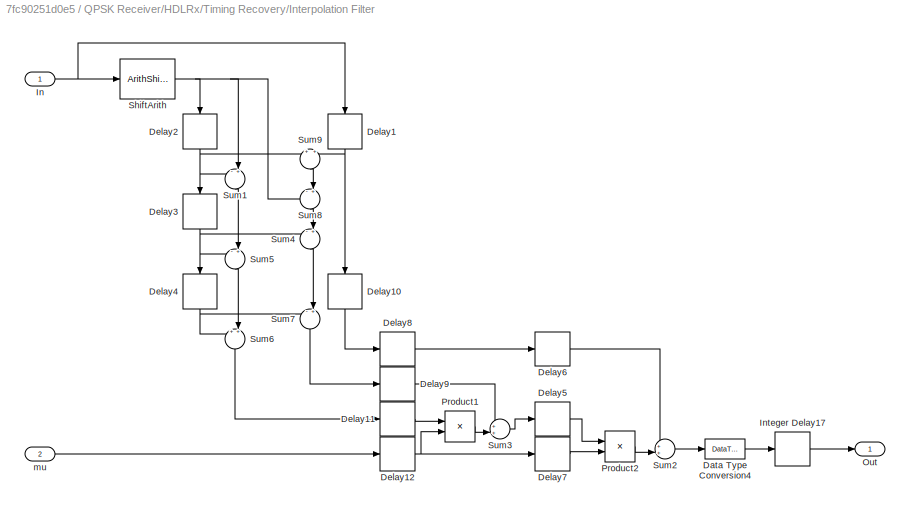
BLOCK [SubSystem] QPSK Receiver/HDLRx/Timing Recovery/Interpolation Filter
  Ports = [2, 1]
  RequestExecContextInheritance = off
  Variant = off
BLOCK [DataTypeConversion] QPSK Receiver/HDLRx/Timing Recovery/Interpolation Filter/Data Type Conversion4
  OutDataTypeStr = fixdt(1,16,10)
  RndMeth = Floor
  SaturateOnIntegerOverflow = off
BLOCK [Delay] QPSK Receiver/HDLRx/Timing Recovery/Interpolation Filter/Delay1
  DelayLength = 1
  InitialCondition = 0
  InputPortMap = u0
  Ports = [1, 1]
BLOCK [Delay] QPSK Receiver/HDLRx/Timing Recovery/Interpolation Filter/Delay10
  DelayLength = 1
  InitialCondition = 0
  InputPortMap = u0
  Ports = [1, 1]
BLOCK [Delay] QPSK Receiver/HDLRx/Timing Recovery/Interpolation Filter/Delay11
  DelayLength = 1
  InitialCondition = 0
  InputPortMap = u0
  Ports = [1, 1]
BLOCK [Delay] QPSK Receiver/HDLRx/Timing Recovery/Interpolation Filter/Delay12
  DelayLength = 1
  InitialCondition = 0
  InputPortMap = u0
  Ports = [1, 1]
BLOCK [Delay] QPSK Receiver/HDLRx/Timing Recovery/Interpolation Filter/Delay2
  DelayLength = 1
  InitialCondition = 0
  InputPortMap = u0
  Ports = [1, 1]
BLOCK [Delay] QPSK Receiver/HDLRx/Timing Recovery/Interpolation Filter/Delay3
  DelayLength = 1
  InitialCondition = 0
  InputPortMap = u0
  Ports = [1, 1]
BLOCK [Delay] QPSK Receiver/HDLRx/Timing Recovery/Interpolation Filter/Delay4
  DelayLength = 1
  InitialCondition = 0
  InputPortMap = u0
  Ports = [1, 1]
BLOCK [Delay] QPSK Receiver/HDLRx/Timing Recovery/Interpolation Filter/Delay5
  DelayLength = 1
  InitialCondition = 0
  InputPortMap = u0
  Ports = [1, 1]
BLOCK [Delay] QPSK Receiver/HDLRx/Timing Recovery/Interpolation Filter/Delay6
  DelayLength = 1
  InitialCondition = 0
  InputPortMap = u0
  Ports = [1, 1]
BLOCK [Delay] QPSK Receiver/HDLRx/Timing Recovery/Interpolation Filter/Delay7
  DelayLength = 1
  InitialCondition = 0
  InputPortMap = u0
  Ports = [1, 1]
BLOCK [Delay] QPSK Receiver/HDLRx/Timing Recovery/Interpolation Filter/Delay8
  DelayLength = 1
  InitialCondition = 0
  InputPortMap = u0
  Ports = [1, 1]
BLOCK [Delay] QPSK Receiver/HDLRx/Timing Recovery/Interpolation Filter/Delay9
  DelayLength = 1
  InitialCondition = 0
  InputPortMap = u0
  Ports = [1, 1]
BLOCK [Inport] QPSK Receiver/HDLRx/Timing Recovery/Interpolation Filter/In
  IconDisplay = Port number
BLOCK [Delay] QPSK Receiver/HDLRx/Timing Recovery/Interpolation Filter/Integer Delay17
  InputPortMap = u0
  InputProcessing = Inherited
  Ports = [1, 1]
  UserDataPersistent = on
BLOCK [Outport] QPSK Receiver/HDLRx/Timing Recovery/Interpolation Filter/Out
  IconDisplay = Port number
BLOCK [Product] QPSK Receiver/HDLRx/Timing Recovery/Interpolation Filter/Product1
  InputSameDT = off
  OutDataTypeStr = fixdt(1,16,10)
  Ports = [2, 1]
  SaturateOnIntegerOverflow = off
BLOCK [Product] QPSK Receiver/HDLRx/Timing Recovery/Interpolation Filter/Product2
  InputSameDT = off
  OutDataTypeStr = Inherit: Inherit via internal rule
  Ports = [2, 1]
  SaturateOnIntegerOverflow = off
BLOCK [ArithShift] QPSK Receiver/HDLRx/Timing Recovery/Interpolation Filter/ShiftArith
  BitShiftDirection = Right
  BitShiftNumber = 1
  InputPortMap = u0
  Ports = [1, 1]
BLOCK [Sum] QPSK Receiver/HDLRx/Timing Recovery/Interpolation Filter/Sum1
  IconShape = round
  InputSameDT = off
  Inputs = -+|
  OutDataTypeStr = Inherit: Inherit via internal rule
  Ports = [2, 1]
  SaturateOnIntegerOverflow = off
BLOCK [Sum] QPSK Receiver/HDLRx/Timing Recovery/Interpolation Filter/Sum2
  IconShape = round
  InputSameDT = off
  Inputs = ++|
  OutDataTypeStr = Inherit: Inherit via internal rule
  Ports = [2, 1]
  SaturateOnIntegerOverflow = off
BLOCK [Sum] QPSK Receiver/HDLRx/Timing Recovery/Interpolation Filter/Sum3
  IconShape = round
  InputSameDT = off
  Inputs = ++|
  OutDataTypeStr = fixdt(1,16,10)
  Ports = [2, 1]
  SaturateOnIntegerOverflow = off
BLOCK [Sum] QPSK Receiver/HDLRx/Timing Recovery/Interpolation Filter/Sum4
  IconShape = round
  InputSameDT = off
  Inputs = -+|
  OutDataTypeStr = Inherit: Inherit via internal rule
  Ports = [2, 1]
  SaturateOnIntegerOverflow = off
BLOCK [Sum] QPSK Receiver/HDLRx/Timing Recovery/Interpolation Filter/Sum5
  IconShape = round
  InputSameDT = off
  Inputs = -+|
  OutDataTypeStr = Inherit: Inherit via internal rule
  Ports = [2, 1]
  SaturateOnIntegerOverflow = off
BLOCK [Sum] QPSK Receiver/HDLRx/Timing Recovery/Interpolation Filter/Sum6
  IconShape = round
  InputSameDT = off
  Inputs = ++|
  OutDataTypeStr = fixdt(1,16,11)
  Ports = [2, 1]
BLOCK [Sum] QPSK Receiver/HDLRx/Timing Recovery/Interpolation Filter/Sum7
  IconShape = round
  InputSameDT = off
  Inputs = -+|
  OutDataTypeStr = fixdt(1,16,10)
  Ports = [2, 1]
  SaturateOnIntegerOverflow = off
BLOCK [Sum] QPSK Receiver/HDLRx/Timing Recovery/Interpolation Filter/Sum8
  IconShape = round
  InputSameDT = off
  Inputs = -+|
  OutDataTypeStr = Inherit: Inherit via internal rule
  Ports = [2, 1]
  SaturateOnIntegerOverflow = off
BLOCK [Sum] QPSK Receiver/HDLRx/Timing Recovery/Interpolation Filter/Sum9
  IconShape = round
  InputSameDT = off
  Inputs = +|+
  OutDataTypeStr = Inherit: Inherit via internal rule
  Ports = [2, 1]
  SaturateOnIntegerOverflow = off
BLOCK [Inport] QPSK Receiver/HDLRx/Timing Recovery/Interpolation Filter/mu
  IconDisplay = Port number
  Port = 2
BLOCK [SubSystem] QPSK Receiver/HDLRx/Timing Recovery/Loop Filter
  Ports = [1, 1]
  RequestExecContextInheritance = off
  Variant = off
BLOCK [DataTypeConversion] QPSK Receiver/HDLRx/Timing Recovery/Loop Filter/Data Type Conversion17
  OutDataTypeStr = fixdt(1,11,10)
  RndMeth = Floor
  SaturateOnIntegerOverflow = off
BLOCK [Delay] QPSK Receiver/HDLRx/Timing Recovery/Loop Filter/Delay1
  DelayLength = 1
  InitialCondition = 0
  InputPortMap = u0
  Ports = [1, 1]
BLOCK [Delay] QPSK Receiver/HDLRx/Timing Recovery/Loop Filter/Delay2
  DelayLength = 1
  InitialCondition = 0
  InputPortMap = u0
  Ports = [1, 1]
BLOCK [Delay] QPSK Receiver/HDLRx/Timing Recovery/Loop Filter/Delay4
  DelayLength = 1
  InitialCondition = 0
  InputPortMap = u0
  Ports = [1, 1]
BLOCK [SubSystem] QPSK Receiver/HDLRx/Timing Recovery/Loop Filter/Digital Filter
  Ports = [1, 1]
  RequestExecContextInheritance = off
  Variant = off
BLOCK [Sum] QPSK Receiver/HDLRx/Timing Recovery/Loop Filter/Digital Filter/Add2
  InputSameDT = off
  OutDataTypeStr = fixdt(1,40,33)
  Ports = [2, 1]
  SaturateOnIntegerOverflow = off
BLOCK [Inport] QPSK Receiver/HDLRx/Timing Recovery/Loop Filter/Digital Filter/In1
  IconDisplay = Port number
BLOCK [Outport] QPSK Receiver/HDLRx/Timing Recovery/Loop Filter/Digital Filter/Out1
  IconDisplay = Port number
BLOCK [UnitDelay] QPSK Receiver/HDLRx/Timing Recovery/Loop Filter/Digital Filter/Unit Delay1
  InputProcessing = Elements as channels (sample based)
  SampleTime = -1
BLOCK [Gain] QPSK Receiver/HDLRx/Timing Recovery/Loop Filter/K1
  Gain = K1
  OutDataTypeStr = fixdt(1,40,33)
  ParamDataTypeStr = Inherit: Inherit via internal rule
  SaturateOnIntegerOverflow = off
BLOCK [Gain] QPSK Receiver/HDLRx/Timing Recovery/Loop Filter/K2
  Gain = K2
  OutDataTypeStr = Inherit: Inherit via internal rule
  ParamDataTypeStr = Inherit: Inherit via internal rule
  SaturateOnIntegerOverflow = off
BLOCK [Sum] QPSK Receiver/HDLRx/Timing Recovery/Loop Filter/Sum2
  OutDataTypeStr = Inherit: Inherit via internal rule
  Ports = [2, 1]
BLOCK [Inport] QPSK Receiver/HDLRx/Timing Recovery/Loop Filter/e
  IconDisplay = Port number
BLOCK [Outport] QPSK Receiver/HDLRx/Timing Recovery/Loop Filter/v
  IconDisplay = Port number
BLOCK [SubSystem] QPSK Receiver/HDLRx/Timing Recovery/Timing Error Detector
  ErrorFcn = Stateflow.Translate.translate
  PermitHierarchicalResolution = ExplicitOnly
  Ports = [2, 1]
  RequestExecContextInheritance = off
  SFBlockType = MATLAB Function
  TreatAsAtomicUnit = on
  Variant = off
BLOCK [Demux] QPSK Receiver/HDLRx/Timing Recovery/Timing Error Detector/ Demux 
  Outputs = 1
  Ports = [1, 1]
BLOCK [S-Function] QPSK Receiver/HDLRx/Timing Recovery/Timing Error Detector/ SFunction 
  EnableBusSupport = off
  FunctionName = sf_sfun
  PortCounts = [2 2]
  Ports = [2, 2]
  SFunctionDeploymentMode = off
  Tag = Stateflow S-Function zynqRadioQPSKRxFPGAAD9361AD9364SL 6
BLOCK [Terminator] QPSK Receiver/HDLRx/Timing Recovery/Timing Error Detector/ Terminator 
BLOCK [Inport] QPSK Receiver/HDLRx/Timing Recovery/Timing Error Detector/In
  IconDisplay = Port number
BLOCK [Outport] QPSK Receiver/HDLRx/Timing Recovery/Timing Error Detector/e
  IconDisplay = Port number
BLOCK [Inport] QPSK Receiver/HDLRx/Timing Recovery/Timing Error Detector/strobe
  IconDisplay = Port number
  Port = 2
BLOCK [Outport] QPSK Receiver/HDLRx/Timing Recovery/dValid
  IconDisplay = Port number
BLOCK [Inport] QPSK Receiver/HDLRx/dataInCh1
  IconDisplay = Port number
BLOCK [Outport] QPSK Receiver/HDLRx/dataOutCh1
  IconDisplay = Port number
BLOCK [Unbuffer] QPSK Receiver/Unbuffer
  Ports = [1, 1]
  SampleBasedProcessing = Same as frame based
BLOCK [SubSystem] QPSK Receiver/Unpack FPGA Outputs
  Ports = [1, 3]
  RequestExecContextInheritance = off
  Variant = off
BLOCK [Reference] QPSK Receiver/Unpack FPGA Outputs/Bit Slice1  REF=hdlsllib/HDL Operations/Bit Slice
  Ports = [1, 1]
  SourceBlock = hdlsllib/HDL Operations/Bit Slice
  SourceType = Bit Slice
BLOCK [Reference] QPSK Receiver/Unpack FPGA Outputs/Bit Slice2  REF=hdlsllib/HDL Operations/Bit Slice
  Ports = [1, 1]
  SourceBlock = hdlsllib/HDL Operations/Bit Slice
  SourceType = Bit Slice
BLOCK [Reference] QPSK Receiver/Unpack FPGA Outputs/Bit Slice3  REF=hdlsllib/HDL Operations/Bit Slice
  Ports = [1, 1]
  SourceBlock = hdlsllib/HDL Operations/Bit Slice
  SourceType = Bit Slice
BLOCK [ComplexToRealImag] QPSK Receiver/Unpack FPGA Outputs/Complex to Real-Imag
  Ports = [1, 2]
BLOCK [DataTypeConversion] QPSK Receiver/Unpack FPGA Outputs/Data Type Conversion
  OutDataTypeStr = boolean
  RndMeth = Floor
  SaturateOnIntegerOverflow = off
BLOCK [DataTypeConversion] QPSK Receiver/Unpack FPGA Outputs/Data Type Conversion1
  OutDataTypeStr = boolean
  RndMeth = Floor
  SaturateOnIntegerOverflow = off
BLOCK [DataTypeConversion] QPSK Receiver/Unpack FPGA Outputs/Data Type Conversion2
  OutDataTypeStr = boolean
  RndMeth = Floor
  SaturateOnIntegerOverflow = off
BLOCK [Inport] QPSK Receiver/Unpack FPGA Outputs/In1
  IconDisplay = Port number
BLOCK [Outport] QPSK Receiver/Unpack FPGA Outputs/bit1
  IconDisplay = Port number
BLOCK [Outport] QPSK Receiver/Unpack FPGA Outputs/bit2
  IconDisplay = Port number
  Port = 2
BLOCK [Outport] QPSK Receiver/Unpack FPGA Outputs/dValid
  IconDisplay = Port number
  Port = 3
BLOCK [Inport] QPSK Receiver/dataIn
  IconDisplay = Port number
  OutDataTypeStr = double
BLOCK [SignalSpecification] Signal Specification
  SampleTime = (sdrzQPSKrxFPGA.Upsampling*sdrzQPSKrxFPGA.FrameSize*sdrzQPSKrxFPGA.RxBufferedFrames)/sdrzQPSKrxFPGA.RadioFrontEndSampleRate
BLOCK [Reference] Zynq SDR Receiver  REF=zc706fmc234_lib/ZC706 and 
FMCOMMS2//3//4 
Receiver
  Ports = [0, 2]
  SourceBlock = zc706fmc234_lib/ZC706 and \nFMCOMMS2//3//4 \nReceiver
  SourceType = comm.internal.SDRRxZC706FMC234SL
ANNOTATION (root): <copyright redacted>
ANNOTATION (root): Open the companion retargeted model
ANNOTATION (root): Targeting HDL Optimized QPSK Receiver Using Analog Devices AD9361/AD9364
ANNOTATION QPSK Receiver/HDLRx/Automatic Gain Control/Modulus: sqrt(I^2+Q^2) can be approximated as |L|+0.4*|S|, where |L| is the absolute value of the larger of I or Q, and |S| is the absolute value of the smaller of I or Q. See "|L|+0.4|S| Algorithm" on page 238 in "Digital Signal Processing in Communication Systems" by Marvin Frerking.
ANNOTATION QPSK Receiver/HDLRx/Data Decoding/Modulus: sqrt(I^2+Q^2) can be approximated as |L|+0.4*|S|, where |L| is the absolute value of the larger of I or Q, and |S| is the absolute value of the smaller of I or Q. See "|L|+0.4|S| Algorithm" on page 238 in "Digital Signal Processing in Communication Systems" by Marvin Frerking.
ANNOTATION QPSK Receiver/HDLRx/Fine Frequency Compensation/Loop Filter: Proportional-plus-Integrator Loop Filter, Infinite DC Response to guarantee convergence
ANNOTATION QPSK Receiver/HDLRx/Timing Recovery/Loop Filter: Proportional-Plus-Integrator Loop Filter, Infinite DC Response to guarantee convergence
LINE QPSK Receiver/ :1 -> QPSK Receiver/Descramble and Print:enable
LINE QPSK Receiver/ :2 -> QPSK Receiver/Descramble and Print:1
LINE QPSK Receiver/Buffer:1 -> QPSK Receiver/Unpack FPGA Outputs:1
LINE QPSK Receiver/Data Type Conversion1:1 -> QPSK Receiver/Unbuffer:1
LINE QPSK Receiver/Descramble and Print/Buffer:1 -> QPSK Receiver/Descramble and Print/Descrambling:1
LINE QPSK Receiver/Descramble and Print/Descrambling/Descrambler:1 -> QPSK Receiver/Descramble and Print/Descrambling/Selector1:1
LINE QPSK Receiver/Descramble and Print/Descrambling/In:1 -> QPSK Receiver/Descramble and Print/Descrambling/Selector:1
LINE QPSK Receiver/Descramble and Print/Descrambling/Selector1:1 -> QPSK Receiver/Descramble and Print/Descrambling/Out:1
LINE QPSK Receiver/Descramble and Print/Descrambling/Selector:1 -> QPSK Receiver/Descramble and Print/Descrambling/Descrambler:1
LINE QPSK Receiver/Descramble and Print/Descrambling:1 -> QPSK Receiver/Descramble and Print/BitsToDecimal1:1
LINE QPSK Receiver/Descramble and Print/In1:1 -> QPSK Receiver/Descramble and Print/Buffer:1
LINE QPSK Receiver/HDLRx/Automatic Gain Control/Data Type Conversion:1 -> QPSK Receiver/HDLRx/Automatic Gain Control/Product11:1
LINE QPSK Receiver/HDLRx/Automatic Gain Control/Delay1:1 -> QPSK Receiver/HDLRx/Automatic Gain Control/Product9:2
LINE QPSK Receiver/HDLRx/Automatic Gain Control/Delay2:1 -> QPSK Receiver/HDLRx/Automatic Gain Control/Product1:2
LINE QPSK Receiver/HDLRx/Automatic Gain Control/Delay3:1 -> QPSK Receiver/HDLRx/Automatic Gain Control/Out:1
NET QPSK Receiver/HDLRx/Automatic Gain Control/Delay4:1 -> QPSK Receiver/HDLRx/Automatic Gain Control/Delay1:1, QPSK Receiver/HDLRx/Automatic Gain Control/Modulus:1
LINE QPSK Receiver/HDLRx/Automatic Gain Control/In:1 -> QPSK Receiver/HDLRx/Automatic Gain Control/Delay4:1
LINE QPSK Receiver/HDLRx/Automatic Gain Control/Loop gain:1 -> QPSK Receiver/HDLRx/Automatic Gain Control/Product1:1
LINE QPSK Receiver/HDLRx/Automatic Gain Control/Modulus/Abs1:1 -> QPSK Receiver/HDLRx/Automatic Gain Control/Modulus/Unit Delay7:1
LINE QPSK Receiver/HDLRx/Automatic Gain Control/Modulus/Abs:1 -> QPSK Receiver/HDLRx/Automatic Gain Control/Modulus/Unit Delay6:1
LINE QPSK Receiver/HDLRx/Automatic Gain Control/Modulus/Add7:1 -> QPSK Receiver/HDLRx/Automatic Gain Control/Modulus/Unit Delay16:1
LINE QPSK Receiver/HDLRx/Automatic Gain Control/Modulus/Complex to Real-Imag:1 -> QPSK Receiver/HDLRx/Automatic Gain Control/Modulus/Abs:1
LINE QPSK Receiver/HDLRx/Automatic Gain Control/Modulus/Complex to Real-Imag:2 -> QPSK Receiver/HDLRx/Automatic Gain Control/Modulus/Abs1:1
LINE QPSK Receiver/HDLRx/Automatic Gain Control/Modulus/Gain4:1 -> QPSK Receiver/HDLRx/Automatic Gain Control/Modulus/Unit Delay13:1
LINE QPSK Receiver/HDLRx/Automatic Gain Control/Modulus/In1:1 -> QPSK Receiver/HDLRx/Automatic Gain Control/Modulus/Complex to Real-Imag:1
LINE QPSK Receiver/HDLRx/Automatic Gain Control/Modulus/MinMax1:1 -> QPSK Receiver/HDLRx/Automatic Gain Control/Modulus/Unit Delay11:1
LINE QPSK Receiver/HDLRx/Automatic Gain Control/Modulus/MinMax:1 -> QPSK Receiver/HDLRx/Automatic Gain Control/Modulus/Unit Delay10:1
LINE QPSK Receiver/HDLRx/Automatic Gain Control/Modulus/Unit Delay10:1 -> QPSK Receiver/HDLRx/Automatic Gain Control/Modulus/Gain4:1
LINE QPSK Receiver/HDLRx/Automatic Gain Control/Modulus/Unit Delay11:1 -> QPSK Receiver/HDLRx/Automatic Gain Control/Modulus/Unit Delay12:1
LINE QPSK Receiver/HDLRx/Automatic Gain Control/Modulus/Unit Delay12:1 -> QPSK Receiver/HDLRx/Automatic Gain Control/Modulus/Add7:1
LINE QPSK Receiver/HDLRx/Automatic Gain Control/Modulus/Unit Delay13:1 -> QPSK Receiver/HDLRx/Automatic Gain Control/Modulus/Add7:2
LINE QPSK Receiver/HDLRx/Automatic Gain Control/Modulus/Unit Delay16:1 -> QPSK Receiver/HDLRx/Automatic Gain Control/Modulus/Out1:1
NET QPSK Receiver/HDLRx/Automatic Gain Control/Modulus/Unit Delay6:1 -> QPSK Receiver/HDLRx/Automatic Gain Control/Modulus/MinMax1:1, QPSK Receiver/HDLRx/Automatic Gain Control/Modulus/MinMax:1
NET QPSK Receiver/HDLRx/Automatic Gain Control/Modulus/Unit Delay7:1 -> QPSK Receiver/HDLRx/Automatic Gain Control/Modulus/MinMax1:2, QPSK Receiver/HDLRx/Automatic Gain Control/Modulus/MinMax:2
LINE QPSK Receiver/HDLRx/Automatic Gain Control/Modulus:1 -> QPSK Receiver/HDLRx/Automatic Gain Control/Product11:2
LINE QPSK Receiver/HDLRx/Automatic Gain Control/Product11:1 -> QPSK Receiver/HDLRx/Automatic Gain Control/Sum1:1
LINE QPSK Receiver/HDLRx/Automatic Gain Control/Product1:1 -> QPSK Receiver/HDLRx/Automatic Gain Control/Sum:1
LINE QPSK Receiver/HDLRx/Automatic Gain Control/Product9:1 -> QPSK Receiver/HDLRx/Automatic Gain Control/Delay3:1
LINE QPSK Receiver/HDLRx/Automatic Gain Control/Reference:1 -> QPSK Receiver/HDLRx/Automatic Gain Control/Sum1:2
NET QPSK Receiver/HDLRx/Automatic Gain Control/Saturation1:1 -> QPSK Receiver/HDLRx/Automatic Gain Control/Data Type Conversion:1, QPSK Receiver/HDLRx/Automatic Gain Control/Product9:1, QPSK Receiver/HDLRx/Automatic Gain Control/Sum:2
LINE QPSK Receiver/HDLRx/Automatic Gain Control/Sum1:1 -> QPSK Receiver/HDLRx/Automatic Gain Control/Delay2:1
LINE QPSK Receiver/HDLRx/Automatic Gain Control/Sum:1 -> QPSK Receiver/HDLRx/Automatic Gain Control/Unit Delay2:1
LINE QPSK Receiver/HDLRx/Automatic Gain Control/Unit Delay2:1 -> QPSK Receiver/HDLRx/Automatic Gain Control/Saturation1:1
LINE QPSK Receiver/HDLRx/Automatic Gain Control:1 -> QPSK Receiver/HDLRx/Raised Cosine Receive Filter:1
LINE QPSK Receiver/HDLRx/Coarse Frequency Compensation/Constant1:1 -> QPSK Receiver/HDLRx/Coarse Frequency Compensation/NCO HDL Optimized1:2
LINE QPSK Receiver/HDLRx/Coarse Frequency Compensation/Constant2:1 -> QPSK Receiver/HDLRx/Coarse Frequency Compensation/Switch:3
LINE QPSK Receiver/HDLRx/Coarse Frequency Compensation/Data Type Conversion1:1 -> QPSK Receiver/HDLRx/Coarse Frequency Compensation/Out:1
NET QPSK Receiver/HDLRx/Coarse Frequency Compensation/Data Type Conversion5:1 -> QPSK Receiver/HDLRx/Coarse Frequency Compensation/Product1:1, QPSK Receiver/HDLRx/Coarse Frequency Compensation/Product1:2
LINE QPSK Receiver/HDLRx/Coarse Frequency Compensation/Delay1:1 -> QPSK Receiver/HDLRx/Coarse Frequency Compensation/luise_fixpt:1
NET QPSK Receiver/HDLRx/Coarse Frequency Compensation/Delay2:1 -> QPSK Receiver/HDLRx/Coarse Frequency Compensation/Product3:1, QPSK Receiver/HDLRx/Coarse Frequency Compensation/Product9:1, QPSK Receiver/HDLRx/Coarse Frequency Compensation/Product9:2
LINE QPSK Receiver/HDLRx/Coarse Frequency Compensation/Delay5:1 -> QPSK Receiver/HDLRx/Coarse Frequency Compensation/Data Type Conversion1:1
LINE QPSK Receiver/HDLRx/Coarse Frequency Compensation/Delay:1 -> QPSK Receiver/HDLRx/Coarse Frequency Compensation/Data Type Conversion5:1
LINE QPSK Receiver/HDLRx/Coarse Frequency Compensation/In:1 -> QPSK Receiver/HDLRx/Coarse Frequency Compensation/Delay2:1
LINE QPSK Receiver/HDLRx/Coarse Frequency Compensation/NCO HDL Optimized1:1 -> QPSK Receiver/HDLRx/Coarse Frequency Compensation/Switch:1
LINE QPSK Receiver/HDLRx/Coarse Frequency Compensation/NCO HDL Optimized1:2 -> QPSK Receiver/HDLRx/Coarse Frequency Compensation/Switch:2
LINE QPSK Receiver/HDLRx/Coarse Frequency Compensation/Product1:1 -> QPSK Receiver/HDLRx/Coarse Frequency Compensation/Delay1:1
LINE QPSK Receiver/HDLRx/Coarse Frequency Compensation/Product3:1 -> QPSK Receiver/HDLRx/Coarse Frequency Compensation/Delay5:1
LINE QPSK Receiver/HDLRx/Coarse Frequency Compensation/Product9:1 -> QPSK Receiver/HDLRx/Coarse Frequency Compensation/Delay:1
LINE QPSK Receiver/HDLRx/Coarse Frequency Compensation/Switch:1 -> QPSK Receiver/HDLRx/Coarse Frequency Compensation/Product3:2
LINE QPSK Receiver/HDLRx/Coarse Frequency Compensation/luise_fixpt/Add1:1 -> QPSK Receiver/HDLRx/Coarse Frequency Compensation/luise_fixpt/Unit Delay37:1
LINE QPSK Receiver/HDLRx/Coarse Frequency Compensation/luise_fixpt/Add2:1 -> QPSK Receiver/HDLRx/Coarse Frequency Compensation/luise_fixpt/Delay2:1
NET QPSK Receiver/HDLRx/Coarse Frequency Compensation/luise_fixpt/Compare To Constant2:1 -> QPSK Receiver/HDLRx/Coarse Frequency Compensation/luise_fixpt/Enabled Wire:enable, QPSK Receiver/HDLRx/Coarse Frequency Compensation/luise_fixpt/SEL1:1
LINE QPSK Receiver/HDLRx/Coarse Frequency Compensation/luise_fixpt/Complex to Magnitude-Angle HDL Optimized:1 -> QPSK Receiver/HDLRx/Coarse Frequency Compensation/luise_fixpt/Product:2
LINE QPSK Receiver/HDLRx/Coarse Frequency Compensation/luise_fixpt/Complex to Magnitude-Angle HDL Optimized:2 -> QPSK Receiver/HDLRx/Coarse Frequency Compensation/luise_fixpt/Terminator:1
LINE QPSK Receiver/HDLRx/Coarse Frequency Compensation/luise_fixpt/Constant1:1 -> QPSK Receiver/HDLRx/Coarse Frequency Compensation/luise_fixpt/Complex to Magnitude-Angle HDL Optimized:2
LINE QPSK Receiver/HDLRx/Coarse Frequency Compensation/luise_fixpt/Constant3:1 -> QPSK Receiver/HDLRx/Coarse Frequency Compensation/luise_fixpt/SEL1:3
LINE QPSK Receiver/HDLRx/Coarse Frequency Compensation/luise_fixpt/Constant:1 -> QPSK Receiver/HDLRx/Coarse Frequency Compensation/luise_fixpt/Product:1
LINE QPSK Receiver/HDLRx/Coarse Frequency Compensation/luise_fixpt/Data Type Conversion1:1 -> QPSK Receiver/HDLRx/Coarse Frequency Compensation/luise_fixpt/Product4:1
LINE QPSK Receiver/HDLRx/Coarse Frequency Compensation/luise_fixpt/Data Type Conversion6:1 -> QPSK Receiver/HDLRx/Coarse Frequency Compensation/luise_fixpt/Delay3:1
LINE QPSK Receiver/HDLRx/Coarse Frequency Compensation/luise_fixpt/Data Type Conversion:1 -> QPSK Receiver/HDLRx/Coarse Frequency Compensation/luise_fixpt/Complex to Magnitude-Angle HDL Optimized:1
LINE QPSK Receiver/HDLRx/Coarse Frequency Compensation/luise_fixpt/Delay2:1 -> QPSK Receiver/HDLRx/Coarse Frequency Compensation/luise_fixpt/ShiftArith:1
LINE QPSK Receiver/HDLRx/Coarse Frequency Compensation/luise_fixpt/Delay3:1 -> QPSK Receiver/HDLRx/Coarse Frequency Compensation/luise_fixpt/Product4:2
LINE QPSK Receiver/HDLRx/Coarse Frequency Compensation/luise_fixpt/Delay4:1 -> QPSK Receiver/HDLRx/Coarse Frequency Compensation/luise_fixpt/Add1:2
LINE QPSK Receiver/HDLRx/Coarse Frequency Compensation/luise_fixpt/Enabled Wire/Data Type Conversion:1 -> QPSK Receiver/HDLRx/Coarse Frequency Compensation/luise_fixpt/Enabled Wire/Out1:1
LINE QPSK Receiver/HDLRx/Coarse Frequency Compensation/luise_fixpt/Enabled Wire/In1:1 -> QPSK Receiver/HDLRx/Coarse Frequency Compensation/luise_fixpt/Enabled Wire/Data Type Conversion:1
LINE QPSK Receiver/HDLRx/Coarse Frequency Compensation/luise_fixpt/Enabled Wire:1 -> QPSK Receiver/HDLRx/Coarse Frequency Compensation/luise_fixpt/Signal Specification:1
LINE QPSK Receiver/HDLRx/Coarse Frequency Compensation/luise_fixpt/HDL Counter2:1 -> QPSK Receiver/HDLRx/Coarse Frequency Compensation/luise_fixpt/Compare To Constant2:1
NET QPSK Receiver/HDLRx/Coarse Frequency Compensation/luise_fixpt/In1:1 -> QPSK Receiver/HDLRx/Coarse Frequency Compensation/luise_fixpt/Data Type Conversion6:1, QPSK Receiver/HDLRx/Coarse Frequency Compensation/luise_fixpt/Math Function1:1
LINE QPSK Receiver/HDLRx/Coarse Frequency Compensation/luise_fixpt/Math Function1:1 -> QPSK Receiver/HDLRx/Coarse Frequency Compensation/luise_fixpt/Unit Delay7:1
LINE QPSK Receiver/HDLRx/Coarse Frequency Compensation/luise_fixpt/Product4:1 -> QPSK Receiver/HDLRx/Coarse Frequency Compensation/luise_fixpt/Delay4:1
LINE QPSK Receiver/HDLRx/Coarse Frequency Compensation/luise_fixpt/Product:1 -> QPSK Receiver/HDLRx/Coarse Frequency Compensation/luise_fixpt/offset:1
LINE QPSK Receiver/HDLRx/Coarse Frequency Compensation/luise_fixpt/SEL1:1 -> QPSK Receiver/HDLRx/Coarse Frequency Compensation/luise_fixpt/Add1:1
LINE QPSK Receiver/HDLRx/Coarse Frequency Compensation/luise_fixpt/ShiftArith:1 -> QPSK Receiver/HDLRx/Coarse Frequency Compensation/luise_fixpt/Data Type Conversion1:1
LINE QPSK Receiver/HDLRx/Coarse Frequency Compensation/luise_fixpt/Signal Specification:1 -> QPSK Receiver/HDLRx/Coarse Frequency Compensation/luise_fixpt/Data Type Conversion:1
NET QPSK Receiver/HDLRx/Coarse Frequency Compensation/luise_fixpt/Unit Delay37:1 -> QPSK Receiver/HDLRx/Coarse Frequency Compensation/luise_fixpt/Enabled Wire:1, QPSK Receiver/HDLRx/Coarse Frequency Compensation/luise_fixpt/SEL1:2
NET QPSK Receiver/HDLRx/Coarse Frequency Compensation/luise_fixpt/Unit Delay6:1 -> QPSK Receiver/HDLRx/Coarse Frequency Compensation/luise_fixpt/Add2:2, QPSK Receiver/HDLRx/Coarse Frequency Compensation/luise_fixpt/Unit Delay8:1
NET QPSK Receiver/HDLRx/Coarse Frequency Compensation/luise_fixpt/Unit Delay7:1 -> QPSK Receiver/HDLRx/Coarse Frequency Compensation/luise_fixpt/Add2:1, QPSK Receiver/HDLRx/Coarse Frequency Compensation/luise_fixpt/Unit Delay6:1
LINE QPSK Receiver/HDLRx/Coarse Frequency Compensation/luise_fixpt/Unit Delay8:1 -> QPSK Receiver/HDLRx/Coarse Frequency Compensation/luise_fixpt/Add2:3
LINE QPSK Receiver/HDLRx/Coarse Frequency Compensation/luise_fixpt:1 -> QPSK Receiver/HDLRx/Coarse Frequency Compensation/NCO HDL Optimized1:1
LINE QPSK Receiver/HDLRx/Coarse Frequency Compensation:1 -> QPSK Receiver/HDLRx/Fine Frequency Compensation:1
LINE QPSK Receiver/HDLRx/Data Decoding/Constant:1 -> QPSK Receiver/HDLRx/Data Decoding/Relational Operator:2
LINE QPSK Receiver/HDLRx/Data Decoding/Delay1:1 -> QPSK Receiver/HDLRx/Data Decoding/Product2:2
LINE QPSK Receiver/HDLRx/Data Decoding/Delay2:1 -> QPSK Receiver/HDLRx/Data Decoding/MATLAB Function3:2
LINE QPSK Receiver/HDLRx/Data Decoding/Delay3:1 -> QPSK Receiver/HDLRx/Data Decoding/dValid:1
LINE QPSK Receiver/HDLRx/Data Decoding/Delay4:1 -> QPSK Receiver/HDLRx/Data Decoding/Product2:1
LINE QPSK Receiver/HDLRx/Data Decoding/Delay5:1 -> QPSK Receiver/HDLRx/Data Decoding/QPSK Demodulator Baseband1:1
LINE QPSK Receiver/HDLRx/Data Decoding/Delay6:1 -> QPSK Receiver/HDLRx/Data Decoding/Demux:1
LINE QPSK Receiver/HDLRx/Data Decoding/Demux:1 -> QPSK Receiver/HDLRx/Data Decoding/Bit1:1
LINE QPSK Receiver/HDLRx/Data Decoding/Demux:2 -> QPSK Receiver/HDLRx/Data Decoding/Bit2:1
NET QPSK Receiver/HDLRx/Data Decoding/In:1 -> QPSK Receiver/HDLRx/Data Decoding/Delay1:1, QPSK Receiver/HDLRx/Data Decoding/Matched Filter:1
LINE QPSK Receiver/HDLRx/Data Decoding/MATLAB Function3:1 -> QPSK Receiver/HDLRx/Data Decoding/Delay3:1
LINE QPSK Receiver/HDLRx/Data Decoding/MATLAB Function3:2 -> QPSK Receiver/HDLRx/Data Decoding/Delay4:1
LINE QPSK Receiver/HDLRx/Data Decoding/Matched Filter/Add2:1 -> QPSK Receiver/HDLRx/Data Decoding/Matched Filter/Delay4:1
LINE QPSK Receiver/HDLRx/Data Decoding/Matched Filter/Add3:1 -> QPSK Receiver/HDLRx/Data Decoding/Matched Filter/Delay1:1
NET QPSK Receiver/HDLRx/Data Decoding/Matched Filter/Complex to Real-Imag2:1 -> QPSK Receiver/HDLRx/Data Decoding/Matched Filter/Add2:1, QPSK Receiver/HDLRx/Data Decoding/Matched Filter/Add3:1
NET QPSK Receiver/HDLRx/Data Decoding/Matched Filter/Complex to Real-Imag2:2 -> QPSK Receiver/HDLRx/Data Decoding/Matched Filter/Add2:2, QPSK Receiver/HDLRx/Data Decoding/Matched Filter/Add3:2
LINE QPSK Receiver/HDLRx/Data Decoding/Matched Filter/Data Type Conversion1:1 -> QPSK Receiver/HDLRx/Data Decoding/Matched Filter/Delay3:1
LINE QPSK Receiver/HDLRx/Data Decoding/Matched Filter/Data Type Conversion6:1 -> QPSK Receiver/HDLRx/Data Decoding/Matched Filter/Delay2:1
LINE QPSK Receiver/HDLRx/Data Decoding/Matched Filter/Delay1:1 -> QPSK Receiver/HDLRx/Data Decoding/Matched Filter/Discrete FIR Filter4:1
LINE QPSK Receiver/HDLRx/Data Decoding/Matched Filter/Delay2:1 -> QPSK Receiver/HDLRx/Data Decoding/Matched Filter/Real-Imag to Complex2:1
LINE QPSK Receiver/HDLRx/Data Decoding/Matched Filter/Delay3:1 -> QPSK Receiver/HDLRx/Data Decoding/Matched Filter/Real-Imag to Complex2:2
LINE QPSK Receiver/HDLRx/Data Decoding/Matched Filter/Delay4:1 -> QPSK Receiver/HDLRx/Data Decoding/Matched Filter/Discrete FIR Filter3:1
LINE QPSK Receiver/HDLRx/Data Decoding/Matched Filter/Discrete FIR Filter3:1 -> QPSK Receiver/HDLRx/Data Decoding/Matched Filter/Data Type Conversion6:1
LINE QPSK Receiver/HDLRx/Data Decoding/Matched Filter/Discrete FIR Filter4:1 -> QPSK Receiver/HDLRx/Data Decoding/Matched Filter/Data Type Conversion1:1
LINE QPSK Receiver/HDLRx/Data Decoding/Matched Filter/In1:1 -> QPSK Receiver/HDLRx/Data Decoding/Matched Filter/Complex to Real-Imag2:1
LINE QPSK Receiver/HDLRx/Data Decoding/Matched Filter/Real-Imag to Complex2:1 -> QPSK Receiver/HDLRx/Data Decoding/Matched Filter/Out1:1
NET QPSK Receiver/HDLRx/Data Decoding/Matched Filter:1 -> QPSK Receiver/HDLRx/Data Decoding/Math Function1:1, QPSK Receiver/HDLRx/Data Decoding/Modulus:1
LINE QPSK Receiver/HDLRx/Data Decoding/Math Function1:1 -> QPSK Receiver/HDLRx/Data Decoding/Delay2:1
LINE QPSK Receiver/HDLRx/Data Decoding/Modulus/Abs1:1 -> QPSK Receiver/HDLRx/Data Decoding/Modulus/Delay1:1
LINE QPSK Receiver/HDLRx/Data Decoding/Modulus/Abs:1 -> QPSK Receiver/HDLRx/Data Decoding/Modulus/Delay4:1
LINE QPSK Receiver/HDLRx/Data Decoding/Modulus/Add7:1 -> QPSK Receiver/HDLRx/Data Decoding/Modulus/Delay5:1
LINE QPSK Receiver/HDLRx/Data Decoding/Modulus/Complex to Real-Imag2:1 -> QPSK Receiver/HDLRx/Data Decoding/Modulus/Abs:1
LINE QPSK Receiver/HDLRx/Data Decoding/Modulus/Complex to Real-Imag2:2 -> QPSK Receiver/HDLRx/Data Decoding/Modulus/Abs1:1
NET QPSK Receiver/HDLRx/Data Decoding/Modulus/Delay1:1 -> QPSK Receiver/HDLRx/Data Decoding/Modulus/MinMax1:2, QPSK Receiver/HDLRx/Data Decoding/Modulus/MinMax:2
LINE QPSK Receiver/HDLRx/Data Decoding/Modulus/Delay2:1 -> QPSK Receiver/HDLRx/Data Decoding/Modulus/Delay3:1
LINE QPSK Receiver/HDLRx/Data Decoding/Modulus/Delay3:1 -> QPSK Receiver/HDLRx/Data Decoding/Modulus/Add7:1
NET QPSK Receiver/HDLRx/Data Decoding/Modulus/Delay4:1 -> QPSK Receiver/HDLRx/Data Decoding/Modulus/MinMax1:1, QPSK Receiver/HDLRx/Data Decoding/Modulus/MinMax:1
LINE QPSK Receiver/HDLRx/Data Decoding/Modulus/Delay5:1 -> QPSK Receiver/HDLRx/Data Decoding/Modulus/Out1:1
LINE QPSK Receiver/HDLRx/Data Decoding/Modulus/Delay6:1 -> QPSK Receiver/HDLRx/Data Decoding/Modulus/Add7:2
LINE QPSK Receiver/HDLRx/Data Decoding/Modulus/Delay7:1 -> QPSK Receiver/HDLRx/Data Decoding/Modulus/Gain4:1
LINE QPSK Receiver/HDLRx/Data Decoding/Modulus/Gain4:1 -> QPSK Receiver/HDLRx/Data Decoding/Modulus/Delay6:1
LINE QPSK Receiver/HDLRx/Data Decoding/Modulus/In1:1 -> QPSK Receiver/HDLRx/Data Decoding/Modulus/Complex to Real-Imag2:1
LINE QPSK Receiver/HDLRx/Data Decoding/Modulus/MinMax1:1 -> QPSK Receiver/HDLRx/Data Decoding/Modulus/Delay2:1
LINE QPSK Receiver/HDLRx/Data Decoding/Modulus/MinMax:1 -> QPSK Receiver/HDLRx/Data Decoding/Modulus/Delay7:1
LINE QPSK Receiver/HDLRx/Data Decoding/Modulus:1 -> QPSK Receiver/HDLRx/Data Decoding/Relational Operator:1
LINE QPSK Receiver/HDLRx/Data Decoding/Product2:1 -> QPSK Receiver/HDLRx/Data Decoding/Delay5:1
LINE QPSK Receiver/HDLRx/Data Decoding/QPSK Demodulator Baseband1:1 -> QPSK Receiver/HDLRx/Data Decoding/Delay6:1
LINE QPSK Receiver/HDLRx/Data Decoding/Relational Operator:1 -> QPSK Receiver/HDLRx/Data Decoding/MATLAB Function3:1
LINE QPSK Receiver/HDLRx/Data Decoding:1 -> QPSK Receiver/HDLRx/Logical Operator1:2
LINE QPSK Receiver/HDLRx/Data Decoding:2 -> QPSK Receiver/HDLRx/FPGA to Host:2
LINE QPSK Receiver/HDLRx/Data Decoding:3 -> QPSK Receiver/HDLRx/FPGA to Host:3
LINE QPSK Receiver/HDLRx/FPGA to Host/Bitwise Operator2:1 -> QPSK Receiver/HDLRx/FPGA to Host/Real-Imag to Complex:2
LINE QPSK Receiver/HDLRx/FPGA to Host/Data Type Conversion1:1 -> QPSK Receiver/HDLRx/FPGA to Host/Real-Imag to Complex:1
LINE QPSK Receiver/HDLRx/FPGA to Host/Data Type Conversion2:1 -> QPSK Receiver/HDLRx/FPGA to Host/Bitwise Operator2:1
LINE QPSK Receiver/HDLRx/FPGA to Host/Data Type Conversion:1 -> QPSK Receiver/HDLRx/FPGA to Host/Shift Arithmetic1:1
LINE QPSK Receiver/HDLRx/FPGA to Host/Real-Imag to Complex:1 -> QPSK Receiver/HDLRx/FPGA to Host/Out:1
LINE QPSK Receiver/HDLRx/FPGA to Host/Shift Arithmetic1:1 -> QPSK Receiver/HDLRx/FPGA to Host/Bitwise Operator2:2
LINE QPSK Receiver/HDLRx/FPGA to Host/bit1:1 -> QPSK Receiver/HDLRx/FPGA to Host/Data Type Conversion1:1
LINE QPSK Receiver/HDLRx/FPGA to Host/bit2:1 -> QPSK Receiver/HDLRx/FPGA to Host/Data Type Conversion2:1
LINE QPSK Receiver/HDLRx/FPGA to Host/dValid:1 -> QPSK Receiver/HDLRx/FPGA to Host/Data Type Conversion:1
LINE QPSK Receiver/HDLRx/FPGA to Host:1 -> QPSK Receiver/HDLRx/dataOutCh1:1
NET QPSK Receiver/HDLRx/Fine Frequency Compensation/Delay2:1 -> QPSK Receiver/HDLRx/Fine Frequency Compensation/MATLAB Function1:1, QPSK Receiver/HDLRx/Fine Frequency Compensation/Out:1
LINE QPSK Receiver/HDLRx/Fine Frequency Compensation/Delay5:1 -> QPSK Receiver/HDLRx/Fine Frequency Compensation/Product9:1
LINE QPSK Receiver/HDLRx/Fine Frequency Compensation/In:1 -> QPSK Receiver/HDLRx/Fine Frequency Compensation/Delay5:1
LINE QPSK Receiver/HDLRx/Fine Frequency Compensation/Loop Filter/Data Type Conversion3:1 -> QPSK Receiver/HDLRx/Fine Frequency Compensation/Loop Filter/Sum2:1
LINE QPSK Receiver/HDLRx/Fine Frequency Compensation/Loop Filter/Delay1:1 -> QPSK Receiver/HDLRx/Fine Frequency Compensation/Loop Filter/v:1
NET QPSK Receiver/HDLRx/Fine Frequency Compensation/Loop Filter/Delay2:1 -> QPSK Receiver/HDLRx/Fine Frequency Compensation/Loop Filter/K1:1, QPSK Receiver/HDLRx/Fine Frequency Compensation/Loop Filter/K2:1
NET QPSK Receiver/HDLRx/Fine Frequency Compensation/Loop Filter/Digital Filter/Add1:1 -> QPSK Receiver/HDLRx/Fine Frequency Compensation/Loop Filter/Digital Filter/Out1:1, QPSK Receiver/HDLRx/Fine Frequency Compensation/Loop Filter/Digital Filter/Unit Delay1:1
LINE QPSK Receiver/HDLRx/Fine Frequency Compensation/Loop Filter/Digital Filter/In1:1 -> QPSK Receiver/HDLRx/Fine Frequency Compensation/Loop Filter/Digital Filter/Add1:2
LINE QPSK Receiver/HDLRx/Fine Frequency Compensation/Loop Filter/Digital Filter/Unit Delay1:1 -> QPSK Receiver/HDLRx/Fine Frequency Compensation/Loop Filter/Digital Filter/Add1:1
LINE QPSK Receiver/HDLRx/Fine Frequency Compensation/Loop Filter/Digital Filter:1 -> QPSK Receiver/HDLRx/Fine Frequency Compensation/Loop Filter/Sum2:2
LINE QPSK Receiver/HDLRx/Fine Frequency Compensation/Loop Filter/K1:1 -> QPSK Receiver/HDLRx/Fine Frequency Compensation/Loop Filter/Data Type Conversion3:1
LINE QPSK Receiver/HDLRx/Fine Frequency Compensation/Loop Filter/K2:1 -> QPSK Receiver/HDLRx/Fine Frequency Compensation/Loop Filter/Digital Filter:1
LINE QPSK Receiver/HDLRx/Fine Frequency Compensation/Loop Filter/Sum2:1 -> QPSK Receiver/HDLRx/Fine Frequency Compensation/Loop Filter/Delay1:1
LINE QPSK Receiver/HDLRx/Fine Frequency Compensation/Loop Filter/e:1 -> QPSK Receiver/HDLRx/Fine Frequency Compensation/Loop Filter/Delay2:1
LINE QPSK Receiver/HDLRx/Fine Frequency Compensation/Loop Filter:1 -> QPSK Receiver/HDLRx/Fine Frequency Compensation/NCO:1
LINE QPSK Receiver/HDLRx/Fine Frequency Compensation/MATLAB Function1:1 -> QPSK Receiver/HDLRx/Fine Frequency Compensation/Loop Filter:1
LINE QPSK Receiver/HDLRx/Fine Frequency Compensation/NCO/Constant1:1 -> QPSK Receiver/HDLRx/Fine Frequency Compensation/NCO/NCO HDL Optimized:2
LINE QPSK Receiver/HDLRx/Fine Frequency Compensation/NCO/Constant2:1 -> QPSK Receiver/HDLRx/Fine Frequency Compensation/NCO/Switch:3
LINE QPSK Receiver/HDLRx/Fine Frequency Compensation/NCO/Constant:1 -> QPSK Receiver/HDLRx/Fine Frequency Compensation/NCO/Product:2
LINE QPSK Receiver/HDLRx/Fine Frequency Compensation/NCO/Delay3:1 -> QPSK Receiver/HDLRx/Fine Frequency Compensation/NCO/Out1:1
LINE QPSK Receiver/HDLRx/Fine Frequency Compensation/NCO/In1:1 -> QPSK Receiver/HDLRx/Fine Frequency Compensation/NCO/Product:1
LINE QPSK Receiver/HDLRx/Fine Frequency Compensation/NCO/NCO HDL Optimized:1 -> QPSK Receiver/HDLRx/Fine Frequency Compensation/NCO/Switch:1
LINE QPSK Receiver/HDLRx/Fine Frequency Compensation/NCO/NCO HDL Optimized:2 -> QPSK Receiver/HDLRx/Fine Frequency Compensation/NCO/Switch:2
LINE QPSK Receiver/HDLRx/Fine Frequency Compensation/NCO/Product:1 -> QPSK Receiver/HDLRx/Fine Frequency Compensation/NCO/Signal Specification:1
LINE QPSK Receiver/HDLRx/Fine Frequency Compensation/NCO/Signal Specification:1 -> QPSK Receiver/HDLRx/Fine Frequency Compensation/NCO/NCO HDL Optimized:1
LINE QPSK Receiver/HDLRx/Fine Frequency Compensation/NCO/Switch:1 -> QPSK Receiver/HDLRx/Fine Frequency Compensation/NCO/Delay3:1
LINE QPSK Receiver/HDLRx/Fine Frequency Compensation/NCO:1 -> QPSK Receiver/HDLRx/Fine Frequency Compensation/Product9:2
LINE QPSK Receiver/HDLRx/Fine Frequency Compensation/Product9:1 -> QPSK Receiver/HDLRx/Fine Frequency Compensation/Delay2:1
LINE QPSK Receiver/HDLRx/Fine Frequency Compensation:1 -> QPSK Receiver/HDLRx/Timing Recovery:1
LINE QPSK Receiver/HDLRx/Logical Operator1:1 -> QPSK Receiver/HDLRx/FPGA to Host:1
LINE QPSK Receiver/HDLRx/Raised Cosine Receive Filter:1 -> QPSK Receiver/HDLRx/Coarse Frequency Compensation:1
LINE QPSK Receiver/HDLRx/Timing Recovery/Delay5:1 -> QPSK Receiver/HDLRx/Timing Recovery/Interpolation Filter:1
LINE QPSK Receiver/HDLRx/Timing Recovery/In:1 -> QPSK Receiver/HDLRx/Timing Recovery/Delay5:1
NET QPSK Receiver/HDLRx/Timing Recovery/Integer Delay3:1 -> QPSK Receiver/HDLRx/Timing Recovery/Timing Error Detector:2, QPSK Receiver/HDLRx/Timing Recovery/dValid:1
LINE QPSK Receiver/HDLRx/Timing Recovery/Integer Delay4:1 -> QPSK Receiver/HDLRx/Timing Recovery/Interpolation Filter:2
LINE QPSK Receiver/HDLRx/Timing Recovery/Interpolation Control:1 -> QPSK Receiver/HDLRx/Timing Recovery/Integer Delay3:1
LINE QPSK Receiver/HDLRx/Timing Recovery/Interpolation Control:2 -> QPSK Receiver/HDLRx/Timing Recovery/Integer Delay4:1
LINE QPSK Receiver/HDLRx/Timing Recovery/Interpolation Filter/Data Type Conversion4:1 -> QPSK Receiver/HDLRx/Timing Recovery/Interpolation Filter/Integer Delay17:1
LINE QPSK Receiver/HDLRx/Timing Recovery/Interpolation Filter/Delay10:1 -> QPSK Receiver/HDLRx/Timing Recovery/Interpolation Filter/Delay8:1
LINE QPSK Receiver/HDLRx/Timing Recovery/Interpolation Filter/Delay11:1 -> QPSK Receiver/HDLRx/Timing Recovery/Interpolation Filter/Product1:1
NET QPSK Receiver/HDLRx/Timing Recovery/Interpolation Filter/Delay12:1 -> QPSK Receiver/HDLRx/Timing Recovery/Interpolation Filter/Delay7:1, QPSK Receiver/HDLRx/Timing Recovery/Interpolation Filter/Product1:2
NET QPSK Receiver/HDLRx/Timing Recovery/Interpolation Filter/Delay1:1 -> QPSK Receiver/HDLRx/Timing Recovery/Interpolation Filter/Delay10:1, QPSK Receiver/HDLRx/Timing Recovery/Interpolation Filter/Sum9:2
NET QPSK Receiver/HDLRx/Timing Recovery/Interpolation Filter/Delay2:1 -> QPSK Receiver/HDLRx/Timing Recovery/Interpolation Filter/Delay3:1, QPSK Receiver/HDLRx/Timing Recovery/Interpolation Filter/Sum1:1, QPSK Receiver/HDLRx/Timing Recovery/Interpolation Filter/Sum9:1
NET QPSK Receiver/HDLRx/Timing Recovery/Interpolation Filter/Delay3:1 -> QPSK Receiver/HDLRx/Timing Recovery/Interpolation Filter/Delay4:1, QPSK Receiver/HDLRx/Timing Recovery/Interpolation Filter/Sum4:1, QPSK Receiver/HDLRx/Timing Recovery/Interpolation Filter/Sum5:1
NET QPSK Receiver/HDLRx/Timing Recovery/Interpolation Filter/Delay4:1 -> QPSK Receiver/HDLRx/Timing Recovery/Interpolation Filter/Sum6:1, QPSK Receiver/HDLRx/Timing Recovery/Interpolation Filter/Sum7:1
LINE QPSK Receiver/HDLRx/Timing Recovery/Interpolation Filter/Delay5:1 -> QPSK Receiver/HDLRx/Timing Recovery/Interpolation Filter/Product2:1
LINE QPSK Receiver/HDLRx/Timing Recovery/Interpolation Filter/Delay6:1 -> QPSK Receiver/HDLRx/Timing Recovery/Interpolation Filter/Sum2:1
LINE QPSK Receiver/HDLRx/Timing Recovery/Interpolation Filter/Delay7:1 -> QPSK Receiver/HDLRx/Timing Recovery/Interpolation Filter/Product2:2
LINE QPSK Receiver/HDLRx/Timing Recovery/Interpolation Filter/Delay8:1 -> QPSK Receiver/HDLRx/Timing Recovery/Interpolation Filter/Delay6:1
LINE QPSK Receiver/HDLRx/Timing Recovery/Interpolation Filter/Delay9:1 -> QPSK Receiver/HDLRx/Timing Recovery/Interpolation Filter/Sum3:1
NET QPSK Receiver/HDLRx/Timing Recovery/Interpolation Filter/In:1 -> QPSK Receiver/HDLRx/Timing Recovery/Interpolation Filter/Delay1:1, QPSK Receiver/HDLRx/Timing Recovery/Interpolation Filter/ShiftArith:1
LINE QPSK Receiver/HDLRx/Timing Recovery/Interpolation Filter/Integer Delay17:1 -> QPSK Receiver/HDLRx/Timing Recovery/Interpolation Filter/Out:1
LINE QPSK Receiver/HDLRx/Timing Recovery/Interpolation Filter/Product1:1 -> QPSK Receiver/HDLRx/Timing Recovery/Interpolation Filter/Sum3:2
LINE QPSK Receiver/HDLRx/Timing Recovery/Interpolation Filter/Product2:1 -> QPSK Receiver/HDLRx/Timing Recovery/Interpolation Filter/Sum2:2
NET QPSK Receiver/HDLRx/Timing Recovery/Interpolation Filter/ShiftArith:1 -> QPSK Receiver/HDLRx/Timing Recovery/Interpolation Filter/Delay2:1, QPSK Receiver/HDLRx/Timing Recovery/Interpolation Filter/Sum1:2, QPSK Receiver/HDLRx/Timing Recovery/Interpolation Filter/Sum8:1
LINE QPSK Receiver/HDLRx/Timing Recovery/Interpolation Filter/Sum1:1 -> QPSK Receiver/HDLRx/Timing Recovery/Interpolation Filter/Sum5:2
LINE QPSK Receiver/HDLRx/Timing Recovery/Interpolation Filter/Sum2:1 -> QPSK Receiver/HDLRx/Timing Recovery/Interpolation Filter/Data Type Conversion4:1
LINE QPSK Receiver/HDLRx/Timing Recovery/Interpolation Filter/Sum3:1 -> QPSK Receiver/HDLRx/Timing Recovery/Interpolation Filter/Delay5:1
LINE QPSK Receiver/HDLRx/Timing Recovery/Interpolation Filter/Sum4:1 -> QPSK Receiver/HDLRx/Timing Recovery/Interpolation Filter/Sum7:2
LINE QPSK Receiver/HDLRx/Timing Recovery/Interpolation Filter/Sum5:1 -> QPSK Receiver/HDLRx/Timing Recovery/Interpolation Filter/Sum6:2
LINE QPSK Receiver/HDLRx/Timing Recovery/Interpolation Filter/Sum6:1 -> QPSK Receiver/HDLRx/Timing Recovery/Interpolation Filter/Delay11:1
LINE QPSK Receiver/HDLRx/Timing Recovery/Interpolation Filter/Sum7:1 -> QPSK Receiver/HDLRx/Timing Recovery/Interpolation Filter/Delay9:1
LINE QPSK Receiver/HDLRx/Timing Recovery/Interpolation Filter/Sum8:1 -> QPSK Receiver/HDLRx/Timing Recovery/Interpolation Filter/Sum4:2
LINE QPSK Receiver/HDLRx/Timing Recovery/Interpolation Filter/Sum9:1 -> QPSK Receiver/HDLRx/Timing Recovery/Interpolation Filter/Sum8:2
LINE QPSK Receiver/HDLRx/Timing Recovery/Interpolation Filter/mu:1 -> QPSK Receiver/HDLRx/Timing Recovery/Interpolation Filter/Delay12:1
NET QPSK Receiver/HDLRx/Timing Recovery/Interpolation Filter:1 -> QPSK Receiver/HDLRx/Timing Recovery/DataOut:1, QPSK Receiver/HDLRx/Timing Recovery/Timing Error Detector:1
LINE QPSK Receiver/HDLRx/Timing Recovery/Loop Filter/Data Type Conversion17:1 -> QPSK Receiver/HDLRx/Timing Recovery/Loop Filter/v:1
LINE QPSK Receiver/HDLRx/Timing Recovery/Loop Filter/Delay1:1 -> QPSK Receiver/HDLRx/Timing Recovery/Loop Filter/Sum2:1
NET QPSK Receiver/HDLRx/Timing Recovery/Loop Filter/Delay2:1 -> QPSK Receiver/HDLRx/Timing Recovery/Loop Filter/K1:1, QPSK Receiver/HDLRx/Timing Recovery/Loop Filter/K2:1
LINE QPSK Receiver/HDLRx/Timing Recovery/Loop Filter/Delay4:1 -> QPSK Receiver/HDLRx/Timing Recovery/Loop Filter/Sum2:2
NET QPSK Receiver/HDLRx/Timing Recovery/Loop Filter/Digital Filter/Add2:1 -> QPSK Receiver/HDLRx/Timing Recovery/Loop Filter/Digital Filter/Out1:1, QPSK Receiver/HDLRx/Timing Recovery/Loop Filter/Digital Filter/Unit Delay1:1
LINE QPSK Receiver/HDLRx/Timing Recovery/Loop Filter/Digital Filter/In1:1 -> QPSK Receiver/HDLRx/Timing Recovery/Loop Filter/Digital Filter/Add2:2
LINE QPSK Receiver/HDLRx/Timing Recovery/Loop Filter/Digital Filter/Unit Delay1:1 -> QPSK Receiver/HDLRx/Timing Recovery/Loop Filter/Digital Filter/Add2:1
LINE QPSK Receiver/HDLRx/Timing Recovery/Loop Filter/Digital Filter:1 -> QPSK Receiver/HDLRx/Timing Recovery/Loop Filter/Delay4:1
LINE QPSK Receiver/HDLRx/Timing Recovery/Loop Filter/K1:1 -> QPSK Receiver/HDLRx/Timing Recovery/Loop Filter/Delay1:1
LINE QPSK Receiver/HDLRx/Timing Recovery/Loop Filter/K2:1 -> QPSK Receiver/HDLRx/Timing Recovery/Loop Filter/Digital Filter:1
LINE QPSK Receiver/HDLRx/Timing Recovery/Loop Filter/Sum2:1 -> QPSK Receiver/HDLRx/Timing Recovery/Loop Filter/Data Type Conversion17:1
LINE QPSK Receiver/HDLRx/Timing Recovery/Loop Filter/e:1 -> QPSK Receiver/HDLRx/Timing Recovery/Loop Filter/Delay2:1
LINE QPSK Receiver/HDLRx/Timing Recovery/Loop Filter:1 -> QPSK Receiver/HDLRx/Timing Recovery/Interpolation Control:1
LINE QPSK Receiver/HDLRx/Timing Recovery/Timing Error Detector:1 -> QPSK Receiver/HDLRx/Timing Recovery/Loop Filter:1
NET QPSK Receiver/HDLRx/Timing Recovery:1 -> QPSK Receiver/HDLRx/Data Decoding:enable, QPSK Receiver/HDLRx/Logical Operator1:1
LINE QPSK Receiver/HDLRx/Timing Recovery:2 -> QPSK Receiver/HDLRx/Data Decoding:1
LINE QPSK Receiver/HDLRx/dataInCh1:1 -> QPSK Receiver/HDLRx/Automatic Gain Control:1
LINE QPSK Receiver/HDLRx:1 -> QPSK Receiver/Buffer:1
LINE QPSK Receiver/Unbuffer:1 -> QPSK Receiver/HDLRx:1
LINE QPSK Receiver/Unpack FPGA Outputs/Bit Slice1:1 -> QPSK Receiver/Unpack FPGA Outputs/Data Type Conversion1:1
LINE QPSK Receiver/Unpack FPGA Outputs/Bit Slice2:1 -> QPSK Receiver/Unpack FPGA Outputs/Data Type Conversion:1
LINE QPSK Receiver/Unpack FPGA Outputs/Bit Slice3:1 -> QPSK Receiver/Unpack FPGA Outputs/Data Type Conversion2:1
LINE QPSK Receiver/Unpack FPGA Outputs/Complex to Real-Imag:1 -> QPSK Receiver/Unpack FPGA Outputs/Bit Slice2:1
NET QPSK Receiver/Unpack FPGA Outputs/Complex to Real-Imag:2 -> QPSK Receiver/Unpack FPGA Outputs/Bit Slice1:1, QPSK Receiver/Unpack FPGA Outputs/Bit Slice3:1
LINE QPSK Receiver/Unpack FPGA Outputs/Data Type Conversion1:1 -> QPSK Receiver/Unpack FPGA Outputs/bit2:1
LINE QPSK Receiver/Unpack FPGA Outputs/Data Type Conversion2:1 -> QPSK Receiver/Unpack FPGA Outputs/dValid:1
LINE QPSK Receiver/Unpack FPGA Outputs/Data Type Conversion:1 -> QPSK Receiver/Unpack FPGA Outputs/bit1:1
LINE QPSK Receiver/Unpack FPGA Outputs/In1:1 -> QPSK Receiver/Unpack FPGA Outputs/Complex to Real-Imag:1
LINE QPSK Receiver/Unpack FPGA Outputs:1 -> QPSK Receiver/ :1
LINE QPSK Receiver/Unpack FPGA Outputs:2 -> QPSK Receiver/ :2
LINE QPSK Receiver/Unpack FPGA Outputs:3 -> QPSK Receiver/ :3
LINE QPSK Receiver/dataIn:1 -> QPSK Receiver/Data Type Conversion1:1
LINE Signal Specification:1 -> QPSK Receiver:1
LINE Zynq SDR Receiver:1 -> Signal Specification:1
LINE Zynq SDR Receiver:2 -> QPSK Receiver:enable
note: NET lines group one-source signal fan-out (src -> all destinations, sorted); 1:1 wires keep LINE
CHART QPSK Receiver/  states=1 transitions=1
  STATE_LABEL 'eML_blk_kernel()'
  STATE_LABEL 'SCRIPT:\nfunction [RxGo, framed_data] = dataframer(bit1, bit2, datavld)\n%#codegen\n\npersistent  gooddata_from_prev length_prev_good_data\n\n\nif isempty(gooddata_from_prev)\n    gooddata_from_prev = false(8000,1);\n    length_prev_good_data = 0;\nend\n\ngooddata_current = false(8000,1); % worst case scenario\nif any(datavld) % there is some valid data\n    % get the valid data from this frame and append it wi...<+1403ch>'
CHART QPSK Receiver/Descramble and Print/BitsToDecimal1 states=1 transitions=1
  STATE_LABEL 'eML_blk_kernel()'
  STATE_LABEL "SCRIPT:\nfunction BitsToASCII(u)\n% Convert bits to ASCII message.\n\npersistent package_counter;\npersistent error_counter;\nif isempty(package_counter)\n    package_counter = 0;\n    error_counter   = 0;\nend\n\ncoder.extrinsic('disp')\ncoder.extrinsic('num2str')\n\naa = de2bi(int8('Hello world 0'),7,'left-msb');\nbits_ref = double(reshape(aa.',1,[]));\nbits_ref = bits_ref(:);\n\nerror_counter   = error_counter  ...<+339ch>"
CHART QPSK Receiver/HDLRx/Data Decoding/MATLAB Function3 states=1 transitions=1
  STATE_LABEL 'eML_blk_kernel()'
  STATE_LABEL 'SCRIPT:\nfunction [dvalid,Freeze_MF_Conj] = fcn(enable,MF_Conj)\n%#codegen\n\npersistent state;\npersistent counter;\npersistent MF_Out_Reg;\n\nif isempty(state);\n    state      = false;\n    counter    = uint8(0);\n    MF_Out_Reg = complex(fi(0,1,16,10),fi(0,1,16,10));\nend\n\nFreeze_MF_Conj = MF_Out_Reg;\n\nif state==false\n    dvalid=false;\nelse %state==true\n    dvalid=true;\n    counter = counter-1;         \ne...<+346ch>'
CHART QPSK Receiver/HDLRx/Fine Frequency
Compensation/MATLAB Function1 states=1 transitions=1
  STATE_LABEL 'eML_blk_kernel()'
  STATE_LABEL 'SCRIPT:\nfunction e  = PED(In)\n% Input:\n%   In - Input samples, oversampled by two\n% Output:\n%   e - Phase error\n% PED implements \n% e = sign(real(In)).*imag(In) - sign(imag(In)).*real(In);\n\n%#codegen\n\nOP2 = real(In);\nOP1 = imag(In);\n\nReal = OP2;\nImag = OP1;\n\nif (bitget(Real,16)==true) % real component is negative\n    OP1 = fi(-Imag,1,16,14);\nend\nif (bitget(Imag,16)==true) % imaginary component is ...<+68ch>'
CHART QPSK Receiver/HDLRx/Timing Recovery/Interpolation Control states=1 transitions=1
  STATE_LABEL 'eML_blk_kernel()'
  STATE_LABEL 'SCRIPT:\nfunction [Underflow, mu] = Interpolation_ctrl(Delta)\n% Implementation of modulo-1 counter for interpolation control listed in\n% Figure 8.4.19 of "Digital Communications - A Discrete-Time Approach"\n% by Michael Rice. See design details in Chapter 8.4.3 of the same book.\n% \n% Input:\n%   Delta - Loop filter output. If loop is in lock, delta would be small\n%   qpsktxrx - Simulation parameter s...<+948ch>'
CHART QPSK Receiver/HDLRx/Timing Recovery/Timing Error
Detector states=1 transitions=1
  STATE_LABEL 'eML_blk_kernel()'
  STATE_LABEL 'SCRIPT:\nfunction e = TED(In, strobe)\n% Zero-Crossing Timing Error Detector. See "Zero-Crossing Timing Error\n% Detector" section in Chapter 8.4.1 of "Digital Communications - A\n% Discrete-Time Approach" by Michael Rice. For bit stuffing/stripping\n% details, see page 490-494 of the same book.\n%\n% Input: \n%   In - Input samples, interpolation result\n%   strobe - Signal to enable timing error calculat...<+1559ch>'
